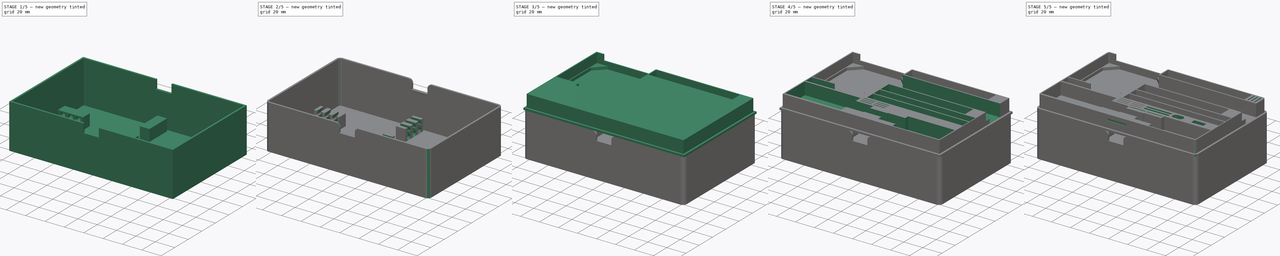
[diagram: build sequence overview — one tinted view per stage of 5, left to right]
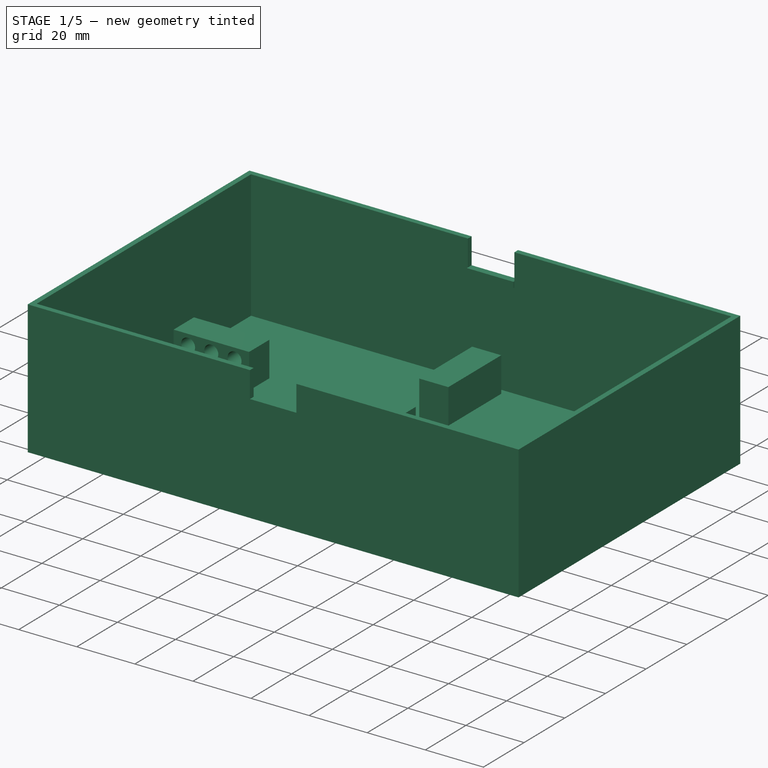
[diagram: stage 1 of 5 — iso view after this stage's code; geometry added in this stage tinted green]
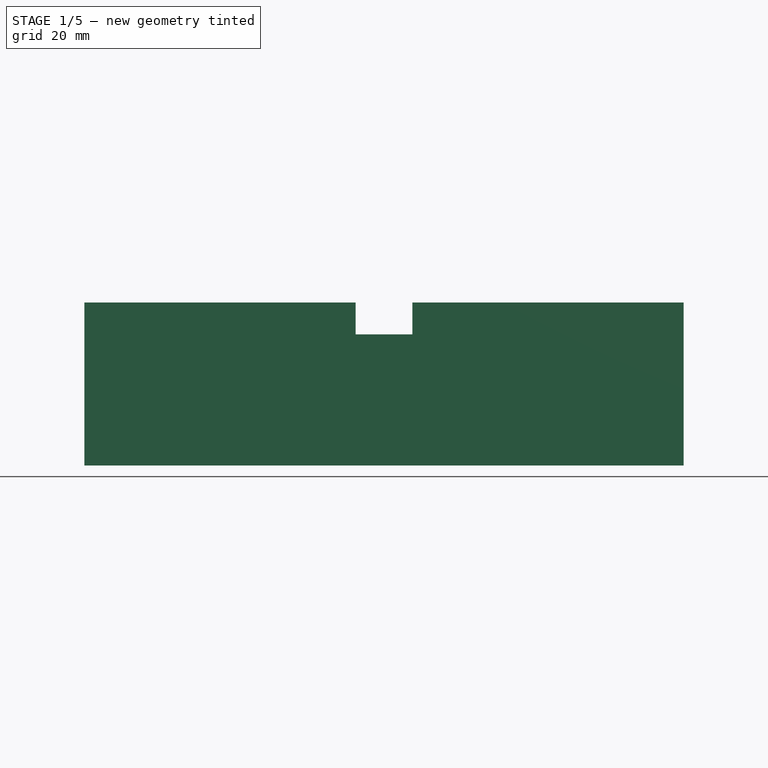
[diagram: stage 1 of 5 — front view after this stage's code; geometry added in this stage tinted green]
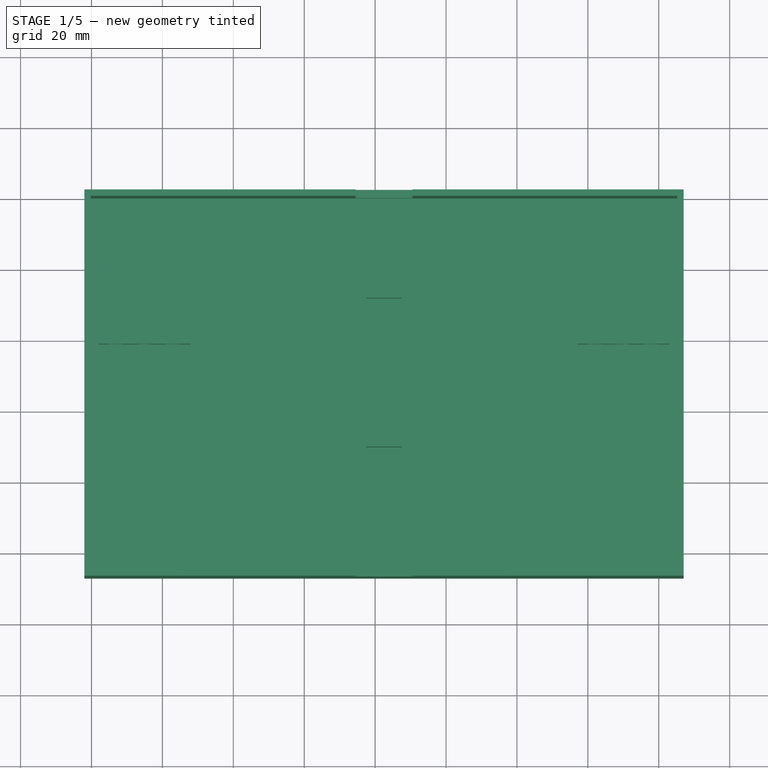
[diagram: stage 1 of 5 — top view after this stage's code; geometry added in this stage tinted green]
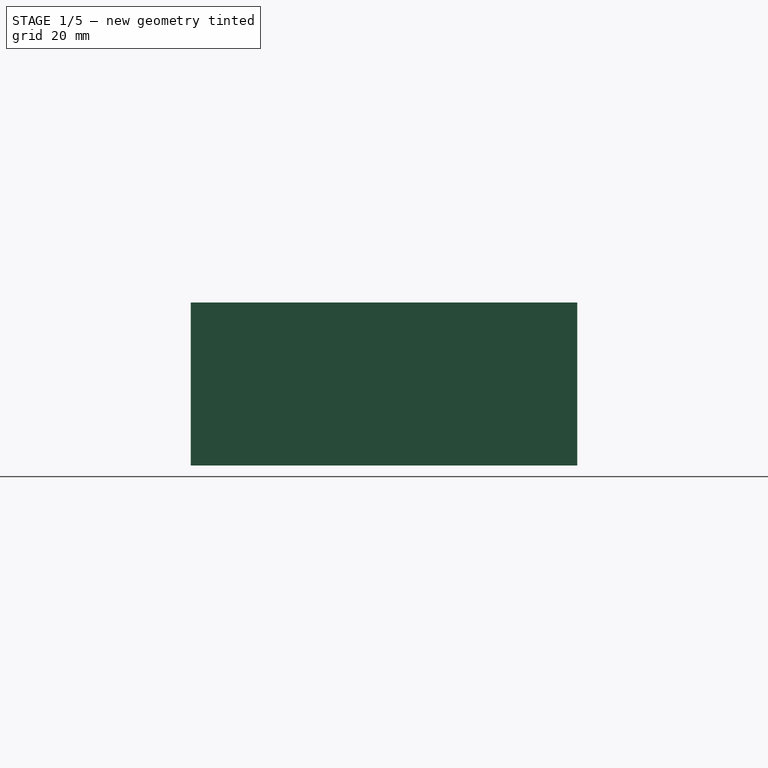
[diagram: stage 1 of 5 — right view after this stage's code; geometry added in this stage tinted green]
FCSTD DOCUMENT  (FreeCAD 0.21R33675 (Git))
Label: StuffOrganizerV1
License: All rights reserved
LicenseURL: http://en.wikipedia.org/wiki/All_rights_reserved
objects: Sketcher::SketchObject×31, PartDesign::Pocket×26, PartDesign::Fillet×11, PartDesign::Pad×7, PartDesign::Plane×5, PartDesign::Body×2
note: 126 computed .brp shape members not serialized (recipe doc carries the construction recipe); baked Part::Feature solids carry a one-line shape summary decoded from their .brp

FEATURE [PartDesign::Body] Body  label="Organizer"
  Group = -> [Sketch007,Sketch,Pad,DatumPlane,Pad001,Pocket016,Pocket006,Sketch001,Pocket,Sketch002,Pocket001,Pocket007,Sketch003,Pocket002,Sketch004,Pocket003,Sketch005,Pocket004,Sketch006,Pocket005,Sketch008,Sketch009,Pocket008,Sketch010,Pocket009,Sketch011,Pocket010,Sketch012,Pocket011,Sketch013,Pocket012,Pocket015,Sketch014,Pocket013,Sketch015,Pocket014,Sketch016,Sketch017,Sketch018,Sketch019,Pocket017,+6 more]
  Origin = -> Origin
  Tip = -> Fillet002
FEATURE [Sketcher::SketchObject] Sketch021  label="CapBaseSketchInt"
  FullyConstrained = true
  MapMode = 5
  Support = -> [XY_Plane001]
  sketch-geometry (4):
    g0: LineSegment StartX=-0.2 StartY=0.2 StartZ=0 EndX=165.2 EndY=0.2 EndZ=0
    g1: LineSegment StartX=165.2 StartY=0.2 StartZ=0 EndX=165.2 EndY=-105.2 EndZ=0
    g2: LineSegment StartX=165.2 StartY=-105.2 StartZ=0 EndX=-0.2 EndY=-105.2 EndZ=0
    g3: LineSegment StartX=-0.2 StartY=-105.2 StartZ=0 EndX=-0.2 EndY=0.2 EndZ=0
  constraints (12):
    c: Coincident(g0,g1)
    c: Coincident(g1,g2)
    c: Coincident(g2,g3)
    c: Coincident(g3,g0)
    c: Horizontal(g0)
    c: Horizontal(g2)
    c: Vertical(g1)
    c: Vertical(g3)
    c: Distance(g1) = 105.4
    c: Distance(g0) = 165.4
    c: DistanceX(g-2,g0) = -0.2
    c: DistanceY(g-1,g0) = 0.2
FEATURE [Sketcher::SketchObject] Sketch022  label="CapBaseSketchExt"
  FullyConstrained = true
  MapMode = 5
  Support = -> [XY_Plane001]
  sketch-geometry (4):
    g0: LineSegment StartX=-2 StartY=2 StartZ=0 EndX=167 EndY=2 EndZ=0
    g1: LineSegment StartX=167 StartY=2 StartZ=0 EndX=167 EndY=-107 EndZ=0
    g2: LineSegment StartX=167 StartY=-107 StartZ=0 EndX=-2 EndY=-107 EndZ=0
    g3: LineSegment StartX=-2 StartY=-107 StartZ=0 EndX=-2 EndY=2 EndZ=0
  constraints (12):
    c: Coincident(g0,g1)
    c: Coincident(g1,g2)
    c: Coincident(g2,g3)
    c: Coincident(g3,g0)
    c: Horizontal(g0)
    c: Horizontal(g2)
    c: Vertical(g1)
    c: Vertical(g3)
    c: DistanceX(g-2,g0) = -2
    c: DistanceY(g-1,g0) = 2
    c: Distance(g0) = 169
    c: Distance(g1) = 109
FEATURE [PartDesign::Pad] Pad002  label="CapPadExt"
  Direction = (0,0,1)
  Length = 46
  Length2 = 10
  Profile = -> Sketch022
  ReferenceAxis = -> Sketch022 [N_Axis]
  Reversed = true
  Type = 0
FEATURE [PartDesign::Pocket] Pocket019  label="CapPocketInt"
  BaseFeature = -> Pad002
  Direction = (0,0,-1)
  Length = 5
  Length2 = 5
  Offset = -2
  Profile = -> Sketch021
  ReferenceAxis = -> Sketch021 [N_Axis]
  Type = 2
FEATURE [Sketcher::SketchObject] Sketch023  label="CapClipSketch"
  FullyConstrained = true
  MapMode = 5
  Placement = pos=(0,0,0) rot=(1,0,0;1.5708rad)
  Support = -> [XZ_Plane001]
  sketch-geometry (5):
    g0: LineSegment StartX=74.5 StartY=9 StartZ=0 EndX=74.5 EndY=-9 EndZ=0
    g1: LineSegment StartX=74.5 StartY=-9 StartZ=0 EndX=90.5 EndY=-9 EndZ=0
    g2: LineSegment StartX=90.5 StartY=-9 StartZ=0 EndX=90.5 EndY=9 EndZ=0
    g3: LineSegment StartX=90.5 StartY=9 StartZ=0 EndX=74.5 EndY=9 EndZ=0
    g4: GeomPoint X=82.5 Y=0 Z=0
  constraints (13):
    c: Coincident(g0,g1)
    c: Coincident(g1,g2)
    c: Coincident(g2,g3)
    c: Coincident(g3,g0)
    c: Horizontal(g1)
    c: Horizontal(g3)
    c: Vertical(g0)
    c: Vertical(g2)
    c: Symmetric(g1,g0,g4)
    c: PointOnObject(g4,g-1)
    c: DistanceX(g-2,g4) = 82.5
    c: Distance(g3) = 16
    c: Distance(g2) = 18
FEATURE [PartDesign::Pocket] Pocket020  label="CapClipPocket"
  BaseFeature = -> Pocket019
  Direction = (0,1,2e-16)
  Length = 5
  Length2 = 5
  Midplane = true
  Profile = -> Sketch023
  ReferenceAxis = -> Sketch023 [N_Axis]
  Type = 1
FEATURE [PartDesign::Plane] DatumPlane002  label="ClipPlaneXZCenter"
  AttachmentOffset = pos=(0,0,52.5) rot=(0,0,1;0rad)
  Length = 215.351
  MapMode = 5
  Placement = pos=(0,-52.5,-1.17e-14) rot=(1,0,0;1.5708rad)
  ResizeMode = 0
  Support = -> [XZ_Plane001]
  Width = 94.3512
FEATURE [Sketcher::SketchObject] Sketch024  label="CapWallClipSketch"
  FullyConstrained = true
  MapMode = 5
  Placement = pos=(0,-52.5,-1.17e-14) rot=(1,0,0;1.5708rad)
  Support = -> [DatumPlane002]
  sketch-geometry (5):
    g0: LineSegment StartX=74.5 StartY=-11 StartZ=0 EndX=74.5 EndY=-9 EndZ=0
    g1: LineSegment StartX=74.5 StartY=-9 StartZ=0 EndX=90.5 EndY=-9 EndZ=0
    g2: LineSegment StartX=90.5 StartY=-9 StartZ=0 EndX=90.5 EndY=-11 EndZ=0
    g3: LineSegment StartX=90.5 StartY=-11 StartZ=0 EndX=74.5 EndY=-11 EndZ=0
    g4: GeomPoint X=82.5 Y=-10 Z=0
  constraints (13):
    c: Coincident(g0,g1)
    c: Coincident(g1,g2)
    c: Coincident(g2,g3)
    c: Coincident(g3,g0)
    c: Horizontal(g1)
    c: Horizontal(g3)
    c: Vertical(g0)
    c: Vertical(g2)
    c: Symmetric(g1,g0,g4)
    c: DistanceX(g-2,g4) = 82.5
    c: Distance(g1) = 16
    c: Distance(g2) = 2
    c: DistanceY(g-1,g4) = -10
FEATURE [PartDesign::Pad] Pad003  label="CapWallClipPad1"
  BaseFeature = -> Pocket020
  Direction = (0,-1,-2e-16)
  Length = 10
  Length2 = 10
  Profile = -> Sketch024
  ReferenceAxis = -> Sketch024 [N_Axis]
  Type = 2
FEATURE [PartDesign::Pad] Pad004  label="CapWallClipPad2"
  BaseFeature = -> Pad003
  Direction = (0,-1,-2e-16)
  Length = 10
  Length2 = 10
  Profile = -> Sketch024
  ReferenceAxis = -> Sketch024 [N_Axis]
  Reversed = true
  Type = 2
FEATURE [PartDesign::Pocket] Pocket021  label="CapWallClipPocket"
  BaseFeature = -> Pad004
  Direction = (0,1,2e-16)
  Length = 52.2
  Length2 = 52.2
  Offset = -2
  Profile = -> Sketch024
  ReferenceAxis = -> Sketch024 [N_Axis]
  Type = 4
FEATURE [PartDesign::Plane] DatumPlane003  label="ClipPlaneYZ"
  AttachmentOffset = pos=(0,0,82.5) rot=(0,0,1;0rad)
  Length = 151.362
  MapMode = 5
  Placement = pos=(82.5,-1.83e-14,1.83e-14) rot=(0.57735,0.57735,0.57735;2.0944rad)
  ResizeMode = 0
  Support = -> [YZ_Plane001]
  Width = 90.3618
FEATURE [PartDesign::Plane] DatumPlane004  label="ClipPlaneXZSide"
  AttachmentOffset = pos=(0,0,36) rot=(0,0,1;0rad)
  Length = 215.351
  MapMode = 5
  Placement = pos=(0,-36,-8e-15) rot=(1,0,0;1.5708rad)
  ResizeMode = 0
  Support = -> [XZ_Plane001]
  Width = 94.3512
FEATURE [Sketcher::SketchObject] Sketch025  label="IntXZClipSketch1"
  FullyConstrained = true
  MapMode = 5
  Placement = pos=(0,-36,-8e-15) rot=(1,0,0;1.5708rad)
  Support = -> [DatumPlane004]
  sketch-geometry (9):
    g0: LineSegment StartX=2 StartY=-32 StartZ=0 EndX=28 EndY=-32 EndZ=0
    g1: LineSegment StartX=28 StartY=-32 StartZ=0 EndX=28 EndY=-44 EndZ=0
    g2: LineSegment StartX=28 StartY=-44 StartZ=0 EndX=2 EndY=-44 EndZ=0
    g3: LineSegment StartX=2 StartY=-44 StartZ=0 EndX=2 EndY=-32 EndZ=0
    g4: LineSegment StartX=82.5 StartY=0 StartZ=0 EndX=82.5 EndY=-100 EndZ=0
    g5: LineSegment StartX=163 StartY=-32 StartZ=0 EndX=137 EndY=-32 EndZ=0
    g6: LineSegment StartX=137 StartY=-32 StartZ=0 EndX=137 EndY=-44 EndZ=0
    g7: LineSegment StartX=137 StartY=-44 StartZ=0 EndX=163 EndY=-44 EndZ=0
    g8: LineSegment StartX=163 StartY=-44 StartZ=0 EndX=163 EndY=-32 EndZ=0
  constraints (27):
    c: Coincident(g0,g1)
    c: Coincident(g1,g2)
    c: Coincident(g2,g3)
    c: Coincident(g3,g0)
    c: Horizontal(g0)
    c: Horizontal(g2)
    c: Vertical(g1)
    c: Vertical(g3)
    c: Vertical(g4)
    c: Coincident(g5,g6)
    c: Coincident(g6,g7)
    c: Coincident(g7,g8)
    c: Coincident(g8,g5)
    c: Horizontal(g5)
    c: Horizontal(g7)
    c: Vertical(g6)
    c: Vertical(g8)
    c: Equal(g0,g5)
    c: Equal(g1,g6)
    c: Symmetric(g5,g0,g4)
    c: Distance(g4) = 100
    c: PointOnObject(g4,g-1)
    c: DistanceX(g-2,g4) = 82.5
    c: DistanceY(g-1,g2) = -44
    c: DistanceX(g-2,g0) = 2
    c: Distance(g0) = 26
    c: Distance(g1) = 12
FEATURE [PartDesign::Pad] Pad005  label="IntXZClipPad"
  BaseFeature = -> Pocket021
  Direction = (0,-1,-2e-16)
  Length = 10
  Length2 = 10
  Midplane = true
  Profile = -> Sketch025
  ReferenceAxis = -> Sketch025 [N_Axis]
  Type = 0
FEATURE [Sketcher::SketchObject] Sketch026  label="IntYZClipSketch1"
  FullyConstrained = true
  MapMode = 5
  Placement = pos=(82.5,-1.83e-14,1.83e-14) rot=(0.57735,0.57735,0.57735;2.0944rad)
  Support = -> [DatumPlane003]
  sketch-geometry (11):
    g0: LineSegment StartX=-28 StartY=-32 StartZ=0 EndX=-28 EndY=-44 EndZ=0
    g1: LineSegment StartX=-28 StartY=-44 StartZ=0 EndX=-2 EndY=-44 EndZ=0
    g2: LineSegment StartX=-2 StartY=-44 StartZ=0 EndX=-2 EndY=-32 EndZ=0
    g3: LineSegment StartX=-2 StartY=-32 StartZ=0 EndX=-28 EndY=-32 EndZ=0
    g4: GeomPoint X=-15 Y=-38 Z=0
    g5: LineSegment StartX=-36 StartY=0 StartZ=0 EndX=-36 EndY=-100 EndZ=0
    g6: LineSegment StartX=-44 StartY=-32 StartZ=0 EndX=-44 EndY=-44 EndZ=0
    g7: LineSegment StartX=-44 StartY=-44 StartZ=0 EndX=-70 EndY=-44 EndZ=0
    g8: LineSegment StartX=-70 StartY=-44 StartZ=0 EndX=-70 EndY=-32 EndZ=0
    g9: LineSegment StartX=-70 StartY=-32 StartZ=0 EndX=-44 EndY=-32 EndZ=0
    g10: GeomPoint X=-57 Y=-38 Z=0
  constraints (29):
    c: Coincident(g0,g1)
    c: Coincident(g1,g2)
    c: Coincident(g2,g3)
    c: Coincident(g3,g0)
    c: Horizontal(g1)
    c: Horizontal(g3)
    c: Vertical(g0)
    c: Vertical(g2)
    c: Symmetric(g1,g0,g4)
    c: PointOnObject(g5,g-1)
    c: Vertical(g5)
    c: Distance(g5) = 100
    c: DistanceX(g-2,g5) = -36
    c: Coincident(g6,g7)
    c: Coincident(g7,g8)
    c: Coincident(g8,g9)
    c: Coincident(g9,g6)
    c: Horizontal(g7)
    c: Horizontal(g9)
    c: Vertical(g6)
    c: Vertical(g8)
    c: Symmetric(g7,g6,g10)
    c: Symmetric(g6,g0,g5)
    c: Equal(g9,g3)
    c: Equal(g8,g2)
    c: Distance(g8,g2) = 68
    c: DistanceY(g-1,g1) = -44
    c: Distance(g0) = 12
    c: Distance(g3) = 26
FEATURE [PartDesign::Pad] Pad006  label="IntYZClipPad"
  BaseFeature = -> Pad005
  Direction = (1,-1e-16,1e-16)
  Length = 10
  Length2 = 10
  Midplane = true
  Profile = -> Sketch026
  ReferenceAxis = -> Sketch026 [N_Axis]
  Type = 0
FEATURE [Sketcher::SketchObject] Sketch027  label="IntXZClipHoles"
  FullyConstrained = true
  MapMode = 5
  Placement = pos=(0,-36,-8e-15) rot=(1,0,0;1.5708rad)
  Support = -> [DatumPlane004]
  sketch-geometry (21):
    g0: Circle CenterX=7 CenterY=-41.6 CenterZ=0 NormalX=0 NormalY=0 NormalZ=1 AngleXU=0 Radius=2.4
    g1: LineSegment StartX=0 StartY=-44 StartZ=0 EndX=100 EndY=-44 EndZ=0
    g2: GeomPoint X=7 Y=-44 Z=0
    g3: LineSegment StartX=7 StartY=-44 StartZ=0 EndX=7 EndY=-41.6 EndZ=0
    g4: Circle CenterX=7 CenterY=-35.6 CenterZ=0 NormalX=0 NormalY=0 NormalZ=1 AngleXU=0 Radius=2.4
    g5: LineSegment StartX=7 StartY=-41.6 StartZ=0 EndX=7 EndY=-35.6 EndZ=0
    g6: Circle CenterX=15 CenterY=-41.6 CenterZ=0 NormalX=0 NormalY=0 NormalZ=1 AngleXU=0 Radius=2.4
    g7: LineSegment StartX=7 StartY=-41.6 StartZ=0 EndX=15 EndY=-41.6 EndZ=0
    g8: Circle CenterX=15 CenterY=-35.6 CenterZ=0 NormalX=0 NormalY=0 NormalZ=1 AngleXU=0 Radius=2.4
    g9: LineSegment StartX=15 StartY=-41.6 StartZ=0 EndX=15 EndY=-35.6 EndZ=0
    g10: LineSegment StartX=82.5 StartY=0 StartZ=0 EndX=82.5 EndY=-100 EndZ=0
    g11: Circle CenterX=158 CenterY=-41.6 CenterZ=0 NormalX=0 NormalY=0 NormalZ=1 AngleXU=0 Radius=2.4
    g12: Circle CenterX=158 CenterY=-35.6 CenterZ=0 NormalX=0 NormalY=0 NormalZ=1 AngleXU=0 Radius=2.4
    g13: Circle CenterX=150 CenterY=-41.6 CenterZ=0 NormalX=0 NormalY=0 NormalZ=1 AngleXU=0 Radius=2.4
    g14: Circle CenterX=150 CenterY=-35.6 CenterZ=0 NormalX=0 NormalY=0 NormalZ=1 AngleXU=0 Radius=2.4
    g15: Circle CenterX=23 CenterY=-35.6 CenterZ=0 NormalX=0 NormalY=0 NormalZ=1 AngleXU=0 Radius=2.4
    g16: Circle CenterX=23 CenterY=-41.6 CenterZ=0 NormalX=0 NormalY=0 NormalZ=1 AngleXU=0 Radius=2.4
    g17: LineSegment StartX=15 StartY=-41.6 StartZ=0 EndX=23 EndY=-41.6 EndZ=0
    g18: LineSegment StartX=23 StartY=-41.6 StartZ=0 EndX=23 EndY=-35.6 EndZ=0
    g19: Circle CenterX=142 CenterY=-35.6 CenterZ=0 NormalX=0 NormalY=0 NormalZ=1 AngleXU=0 Radius=2.4
    g20: Circle CenterX=142 CenterY=-41.6 CenterZ=0 NormalX=0 NormalY=0 NormalZ=1 AngleXU=0 Radius=2.4
  constraints (52):
    c: Diameter(g0) = 4.8
    c: PointOnObject(g1,g-2)
    c: Horizontal(g1)
    c: DistanceY(g-1,g1) = -44
    c: PointOnObject(g2,g0)
    c: Coincident(g3,g2)
    c: Coincident(g3,g0)
    c: Vertical(g3)
    c: PointOnObject(g2,g1)
    c: Equal(g0,g4) = 4.8
    c: Coincident(g0,g5)
    c: Coincident(g4,g5)
    c: Distance(g5) = 6
    c: Angle(g5) = 1.5708
    c: Equal(g0,g6) = 4.8
    c: Coincident(g0,g7)
    c: Coincident(g6,g7)
    c: Distance(g7) = 8
    c: Perpendicular(g7,g5)
    c: Equal(g0,g8) = 4.8
    c: Coincident(g6,g9)
    c: Coincident(g8,g9)
    c: Equal(g5,g9)
    c: Parallel(g9,g5)
    c: PointOnObject(g10,g-1)
    c: Vertical(g10)
    c: Distance(g10) = 100
    c: Distance(g-1,g10) = 82.5
    c: Diameter(g11) = 4.8
    c: Equal(g11,g12) = 4.8
    c: Equal(g11,g13) = 4.8
    c: Equal(g11,g14) = 4.8
    c: Symmetric(g14,g8,g10)
    c: Symmetric(g13,g6,g10)
    c: Symmetric(g11,g0,g10)
    c: Symmetric(g12,g4,g10)
    c: DistanceX(g-2,g4) = 7
    c: Distance(g1) = 100
    c: Equal(g16,g15)
    c: Equal(g15,g8)
    c: Coincident(g17,g6)
    c: Coincident(g17,g16)
    c: Coincident(g18,g16)
    c: Coincident(g18,g15)
    c: Perpendicular(g18,g17)
    c: Parallel(g17,g7)
    c: Equal(g17,g7)
    c: Equal(g18,g9)
    c: Equal(g20,g19)
    c: Equal(g19,g15)
    c: Symmetric(g19,g15,g10)
    c: Symmetric(g20,g16,g10)
FEATURE [PartDesign::Pocket] Pocket022  label="IntXZClipHolesPocket"
  BaseFeature = -> Pad006
  Direction = (0,1,2e-16)
  Length = 10
  Length2 = 5
  Midplane = true
  Profile = -> Sketch027
  ReferenceAxis = -> Sketch027 [N_Axis]
  Type = 0
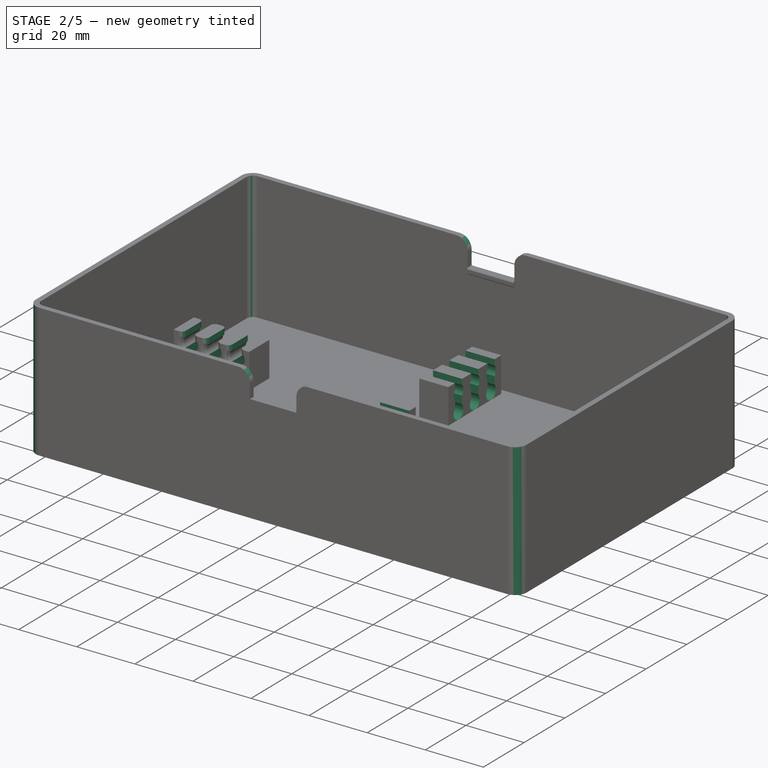
[diagram: stage 2 of 5 — iso view after this stage's code; geometry added in this stage tinted green]
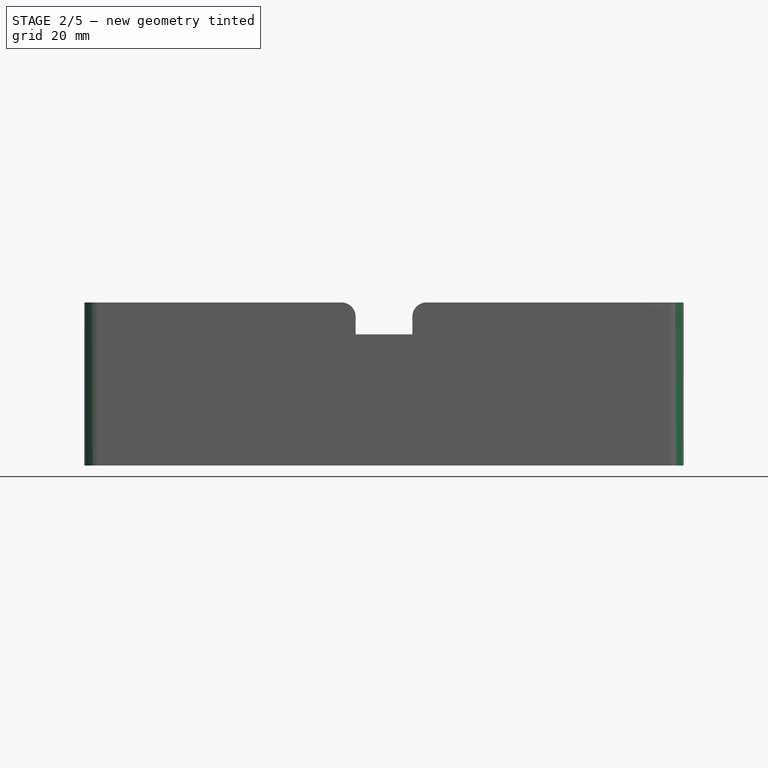
[diagram: stage 2 of 5 — front view after this stage's code; geometry added in this stage tinted green]
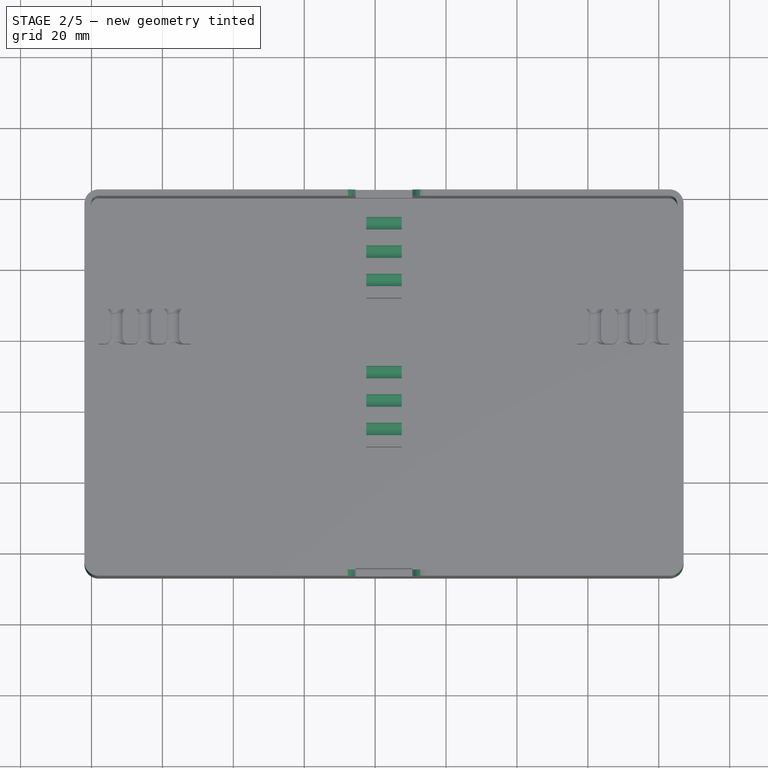
[diagram: stage 2 of 5 — top view after this stage's code; geometry added in this stage tinted green]
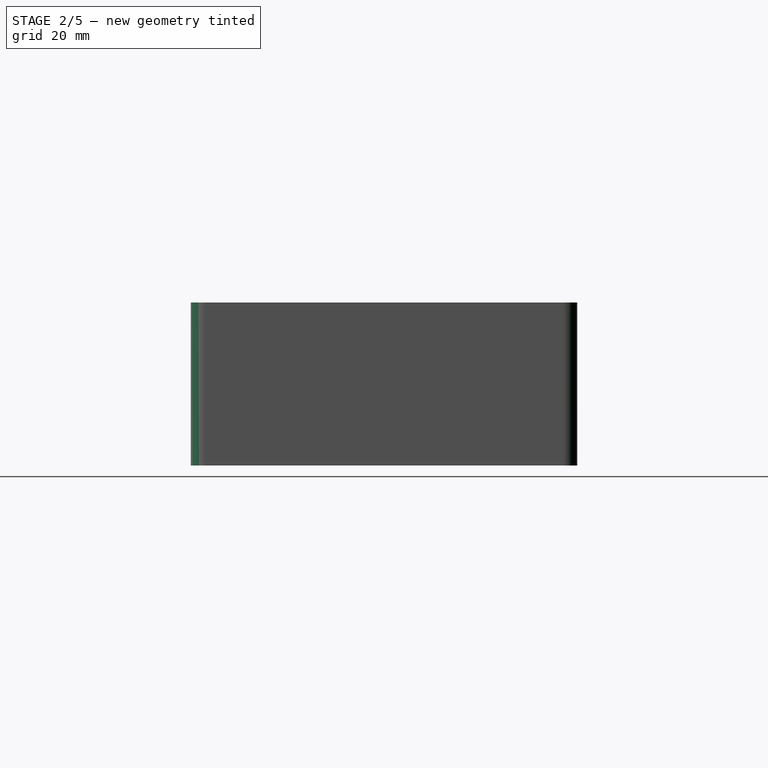
[diagram: stage 2 of 5 — right view after this stage's code; geometry added in this stage tinted green]
FEATURE [Sketcher::SketchObject] Sketch028  label="IntYZClipHoles"
  FullyConstrained = true
  MapMode = 5
  Placement = pos=(82.5,-1.83e-14,1.83e-14) rot=(0.57735,0.57735,0.57735;2.0944rad)
  Support = -> [DatumPlane003]
  sketch-geometry (21):
    g0: Circle CenterX=-15 CenterY=-41.6 CenterZ=0 NormalX=0 NormalY=0 NormalZ=1 AngleXU=0 Radius=2.4
    g1: LineSegment StartX=0 StartY=-44 StartZ=0 EndX=100 EndY=-44 EndZ=0
    g2: GeomPoint X=-15 Y=-44 Z=0
    g3: LineSegment StartX=-15 StartY=-44 StartZ=0 EndX=-15 EndY=-41.6 EndZ=0
    g4: Circle CenterX=-15 CenterY=-35.6 CenterZ=0 NormalX=0 NormalY=0 NormalZ=1 AngleXU=0 Radius=2.4
    g5: LineSegment StartX=-15 StartY=-41.6 StartZ=0 EndX=-15 EndY=-35.6 EndZ=0
    g6: Circle CenterX=-7 CenterY=-41.6 CenterZ=0 NormalX=0 NormalY=0 NormalZ=1 AngleXU=0 Radius=2.4
    g7: LineSegment StartX=-15 StartY=-41.6 StartZ=0 EndX=-7 EndY=-41.6 EndZ=0
    g8: Circle CenterX=-7 CenterY=-35.6 CenterZ=0 NormalX=0 NormalY=0 NormalZ=1 AngleXU=0 Radius=2.4
    g9: LineSegment StartX=-7 StartY=-41.6 StartZ=0 EndX=-7 EndY=-35.6 EndZ=0
    g10: LineSegment StartX=-36 StartY=0 StartZ=0 EndX=-36 EndY=-100 EndZ=0
    g11: Circle CenterX=-57 CenterY=-41.6 CenterZ=0 NormalX=0 NormalY=0 NormalZ=1 AngleXU=0 Radius=2.4
    g12: Circle CenterX=-57 CenterY=-35.6 CenterZ=0 NormalX=0 NormalY=0 NormalZ=1 AngleXU=0 Radius=2.4
    g13: Circle CenterX=-65 CenterY=-41.6 CenterZ=0 NormalX=0 NormalY=0 NormalZ=1 AngleXU=0 Radius=2.4
    g14: Circle CenterX=-65 CenterY=-35.6 CenterZ=0 NormalX=0 NormalY=0 NormalZ=1 AngleXU=0 Radius=2.4
    g15: Circle CenterX=-23 CenterY=-35.6 CenterZ=0 NormalX=0 NormalY=0 NormalZ=1 AngleXU=0 Radius=2.4
    g16: Circle CenterX=-23 CenterY=-41.6 CenterZ=0 NormalX=0 NormalY=0 NormalZ=1 AngleXU=0 Radius=2.4
    g17: Circle CenterX=-49 CenterY=-35.6 CenterZ=0 NormalX=0 NormalY=0 NormalZ=1 AngleXU=0 Radius=2.4
    g18: Circle CenterX=-49 CenterY=-41.6 CenterZ=0 NormalX=0 NormalY=0 NormalZ=1 AngleXU=0 Radius=2.4
    g19: LineSegment StartX=-15 StartY=-41.6 StartZ=0 EndX=-23 EndY=-41.6 EndZ=0
    g20: LineSegment StartX=-23 StartY=-41.6 StartZ=0 EndX=-23 EndY=-35.6 EndZ=0
  constraints (52):
    c: Diameter(g0) = 4.8
    c: PointOnObject(g1,g-2)
    c: Horizontal(g1)
    c: DistanceY(g-1,g1) = -44
    c: PointOnObject(g2,g0)
    c: Coincident(g3,g2)
    c: Coincident(g3,g0)
    c: Vertical(g3)
    c: PointOnObject(g2,g1)
    c: Equal(g0,g4) = 4.8
    c: Coincident(g0,g5)
    c: Coincident(g4,g5)
    c: Distance(g5) = 6
    c: Angle(g5) = 1.5708
    c: Equal(g0,g6) = 4.8
    c: Coincident(g0,g7)
    c: Coincident(g6,g7)
    c: Distance(g7) = 8
    c: Perpendicular(g7,g5)
    c: Equal(g0,g8) = 4.8
    c: Coincident(g6,g9)
    c: Coincident(g8,g9)
    c: Equal(g5,g9)
    c: Parallel(g9,g5)
    c: PointOnObject(g10,g-1)
    c: Vertical(g10)
    c: Distance(g10) = 100
    c: Diameter(g11) = 4.8
    c: Equal(g11,g12) = 4.8
    c: Equal(g11,g13) = 4.8
    c: Equal(g11,g14) = 4.8
    c: Symmetric(g14,g8,g10)
    c: Symmetric(g13,g6,g10)
    c: Symmetric(g11,g0,g10)
    c: Symmetric(g12,g4,g10)
    c: Distance(g1) = 100
    c: DistanceX(g-2,g10) = -36
    c: DistanceX(g-2,g6) = -7
    c: Equal(g15,g16)
    c: Equal(g16,g18)
    c: Equal(g18,g17)
    c: Equal(g17,g4)
    c: Coincident(g19,g0)
    c: Coincident(g20,g19)
    c: Perpendicular(g19,g20)
    c: Coincident(g19,g16)
    c: Coincident(g20,g15)
    c: Equal(g19,g7)
    c: Parallel(g19,g7)
    c: Equal(g20,g5)
    c: Symmetric(g15,g17,g10)
    c: Symmetric(g16,g18,g10)
FEATURE [PartDesign::Pocket] Pocket023  label="IntYZClipPocket"
  BaseFeature = -> Pocket022
  Direction = (-1,1e-16,-1e-16)
  Length = 10
  Length2 = 5
  Midplane = true
  Profile = -> Sketch028
  ReferenceAxis = -> Sketch028 [N_Axis]
  Type = 0
FEATURE [Sketcher::SketchObject] Sketch029  label="IntYZClipVHoles"
  FullyConstrained = true
  MapMode = 5
  Placement = pos=(82.5,-1.83e-14,1.83e-14) rot=(0.57735,0.57735,0.57735;2.0944rad)
  Support = -> [DatumPlane003]
  sketch-geometry (33):
    g0: LineSegment StartX=-8.75 StartY=-42 StartZ=0 EndX=-8.75 EndY=-27 EndZ=0
    g1: LineSegment StartX=-8.75 StartY=-27 StartZ=0 EndX=-5.25 EndY=-27 EndZ=0
    g2: LineSegment StartX=-5.25 StartY=-27 StartZ=0 EndX=-5.25 EndY=-42 EndZ=0
    g3: LineSegment StartX=-5.25 StartY=-42 StartZ=0 EndX=-8.75 EndY=-42 EndZ=0
    g4: GeomPoint X=-7 Y=-34.5 Z=0
    g5: LineSegment StartX=-16.75 StartY=-42 StartZ=0 EndX=-16.75 EndY=-27 EndZ=0
    g6: LineSegment StartX=-16.75 StartY=-27 StartZ=0 EndX=-13.25 EndY=-27 EndZ=0
    g7: LineSegment StartX=-13.25 StartY=-27 StartZ=0 EndX=-13.25 EndY=-42 EndZ=0
    g8: LineSegment StartX=-13.25 StartY=-42 StartZ=0 EndX=-16.75 EndY=-42 EndZ=0
    g9: GeomPoint X=-15 Y=-34.5 Z=0
    g10: LineSegment StartX=-8.75 StartY=-42 StartZ=0 EndX=-16.75 EndY=-42 EndZ=0
    g11: LineSegment StartX=-24.75 StartY=-42 StartZ=0 EndX=-24.75 EndY=-27 EndZ=0
    g12: LineSegment StartX=-24.75 StartY=-27 StartZ=0 EndX=-21.25 EndY=-27 EndZ=0
    g13: LineSegment StartX=-21.25 StartY=-27 StartZ=0 EndX=-21.25 EndY=-42 EndZ=0
    g14: LineSegment StartX=-21.25 StartY=-42 StartZ=0 EndX=-24.75 EndY=-42 EndZ=0
    g15: GeomPoint X=-23 Y=-34.5 Z=0
    g16: LineSegment StartX=-16.75 StartY=-42 StartZ=0 EndX=-24.75 EndY=-42 EndZ=0
    g17: LineSegment StartX=-36 StartY=0 StartZ=0 EndX=-36 EndY=-100 EndZ=0
    g18: LineSegment StartX=-63.25 StartY=-42 StartZ=0 EndX=-63.25 EndY=-27 EndZ=0
    g19: LineSegment StartX=-63.25 StartY=-27 StartZ=0 EndX=-66.75 EndY=-27 EndZ=0
    g20: LineSegment StartX=-66.75 StartY=-27 StartZ=0 EndX=-66.75 EndY=-42 EndZ=0
    g21: LineSegment StartX=-66.75 StartY=-42 StartZ=0 EndX=-63.25 EndY=-42 EndZ=0
    g22: GeomPoint X=-65 Y=-34.5 Z=0
    g23: LineSegment StartX=-55.25 StartY=-42 StartZ=0 EndX=-55.25 EndY=-27 EndZ=0
    g24: LineSegment StartX=-55.25 StartY=-27 StartZ=0 EndX=-58.75 EndY=-27 EndZ=0
    g25: LineSegment StartX=-58.75 StartY=-27 StartZ=0 EndX=-58.75 EndY=-42 EndZ=0
    g26: LineSegment StartX=-58.75 StartY=-42 StartZ=0 EndX=-55.25 EndY=-42 EndZ=0
    g27: GeomPoint X=-57 Y=-34.5 Z=0
    g28: LineSegment StartX=-47.25 StartY=-42 StartZ=0 EndX=-47.25 EndY=-27 EndZ=0
    g29: LineSegment StartX=-47.25 StartY=-27 StartZ=0 EndX=-50.75 EndY=-27 EndZ=0
    g30: LineSegment StartX=-50.75 StartY=-27 StartZ=0 EndX=-50.75 EndY=-42 EndZ=0
    g31: LineSegment StartX=-50.75 StartY=-42 StartZ=0 EndX=-47.25 EndY=-42 EndZ=0
    g32: GeomPoint X=-49 Y=-34.5 Z=0
  constraints (83):
    c: Coincident(g0,g1)
    c: Coincident(g1,g2)
    c: Coincident(g2,g3)
    c: Coincident(g3,g0)
    c: Horizontal(g1)
    c: Horizontal(g3)
    c: Vertical(g0)
    c: Vertical(g2)
    c: Symmetric(g1,g0,g4)
    c: DistanceX(g-2,g4) = -7
    c: Distance(g1) = 3.5
    c: DistanceY(g-1,g2) = -42
    c: Distance(g2) = 15
    c: Coincident(g5,g6)
    c: Coincident(g6,g7)
    c: Coincident(g7,g8)
    c: Coincident(g8,g5)
    c: Horizontal(g6)
    c: Horizontal(g8)
    c: Vertical(g5)
    c: Vertical(g7)
    c: Symmetric(g6,g5,g9)
    c: Equal(g1,g6) = 3.25
    c: Equal(g2,g7) = 15
    c: Coincident(g0,g10)
    c: Coincident(g5,g10)
    c: Distance(g10) = 8
    c: Angle(g10) = 3.14159
    c: Coincident(g11,g12)
    c: Coincident(g12,g13)
    c: Coincident(g13,g14)
    c: Coincident(g14,g11)
    c: Horizontal(g12)
    c: Horizontal(g14)
    c: Vertical(g11)
    c: Vertical(g13)
    c: Symmetric(g12,g11,g15)
    c: Equal(g1,g12) = 3.25
    c: Equal(g2,g13) = 15
    c: Coincident(g5,g16)
    c: Coincident(g11,g16)
    c: Equal(g10,g16)
    c: Parallel(g16,g10)
    c: PointOnObject(g17,g-1)
    c: Vertical(g17)
    c: Distance(g17) = 100
    c: DistanceX(g-2,g17) = -36
    c: Coincident(g18,g19)
    c: Coincident(g19,g20)
    c: Coincident(g20,g21)
    c: Coincident(g21,g18)
    c: Horizontal(g19)
    c: Horizontal(g21)
    c: Vertical(g18)
    c: Vertical(g20)
    c: Symmetric(g19,g18,g22)
    c: Distance(g19) = 3.5
    c: Distance(g20) = 15
    c: Coincident(g23,g24)
    c: Coincident(g24,g25)
    c: Coincident(g25,g26)
    c: Coincident(g26,g23)
    c: Horizontal(g24)
    c: Horizontal(g26)
    c: Vertical(g23)
    c: Vertical(g25)
    c: Symmetric(g24,g23,g27)
    c: Equal(g19,g24) = 3.25
    c: Equal(g20,g25) = 15
    c: Coincident(g28,g29)
    c: Coincident(g29,g30)
    c: Coincident(g30,g31)
    c: Coincident(g31,g28)
    c: Horizontal(g29)
    c: Horizontal(g31)
    c: Vertical(g28)
    c: Vertical(g30)
    c: Symmetric(g29,g28,g32)
    c: Equal(g19,g29) = 3.25
    c: Equal(g20,g30) = 15
    c: Symmetric(g15,g32,g17)
    c: Symmetric(g27,g9,g17)
    c: Symmetric(g4,g22,g17)
FEATURE [PartDesign::Pocket] Pocket024  label="IntYZClipVPocket"
  BaseFeature = -> Pocket023
  Direction = (-1,1e-16,-1e-16)
  Length = 10
  Length2 = 5
  Midplane = true
  Profile = -> Sketch029
  ReferenceAxis = -> Sketch029 [N_Axis]
  Type = 0
FEATURE [Sketcher::SketchObject] Sketch030  label="IntXZClipVHoles"
  FullyConstrained = true
  MapMode = 5
  Placement = pos=(0,-36,-8e-15) rot=(1,0,0;1.5708rad)
  Support = -> [DatumPlane004]
  sketch-geometry (33):
    g0: LineSegment StartX=5.25 StartY=-27 StartZ=0 EndX=5.25 EndY=-42 EndZ=0
    g1: LineSegment StartX=5.25 StartY=-42 StartZ=0 EndX=8.75 EndY=-42 EndZ=0
    g2: LineSegment StartX=8.75 StartY=-42 StartZ=0 EndX=8.75 EndY=-27 EndZ=0
    g3: LineSegment StartX=8.75 StartY=-27 StartZ=0 EndX=5.25 EndY=-27 EndZ=0
    g4: GeomPoint X=7 Y=-34.5 Z=0
    g5: LineSegment StartX=13.25 StartY=-27 StartZ=0 EndX=13.25 EndY=-42 EndZ=0
    g6: LineSegment StartX=13.25 StartY=-42 StartZ=0 EndX=16.75 EndY=-42 EndZ=0
    g7: LineSegment StartX=16.75 StartY=-42 StartZ=0 EndX=16.75 EndY=-27 EndZ=0
    g8: LineSegment StartX=16.75 StartY=-27 StartZ=0 EndX=13.25 EndY=-27 EndZ=0
    g9: GeomPoint X=15 Y=-34.5 Z=0
    g10: LineSegment StartX=5.25 StartY=-27 StartZ=0 EndX=13.25 EndY=-27 EndZ=0
    g11: LineSegment StartX=21.25 StartY=-27 StartZ=0 EndX=21.25 EndY=-42 EndZ=0
    g12: LineSegment StartX=21.25 StartY=-42 StartZ=0 EndX=24.75 EndY=-42 EndZ=0
    g13: LineSegment StartX=24.75 StartY=-42 StartZ=0 EndX=24.75 EndY=-27 EndZ=0
    g14: LineSegment StartX=24.75 StartY=-27 StartZ=0 EndX=21.25 EndY=-27 EndZ=0
    g15: GeomPoint X=23 Y=-34.5 Z=0
    g16: LineSegment StartX=13.25 StartY=-27 StartZ=0 EndX=21.25 EndY=-27 EndZ=0
    g17: LineSegment StartX=82.5 StartY=0 StartZ=0 EndX=82.5 EndY=-100 EndZ=0
    g18: LineSegment StartX=159.75 StartY=-27 StartZ=0 EndX=159.75 EndY=-42 EndZ=0
    g19: LineSegment StartX=159.75 StartY=-42 StartZ=0 EndX=156.25 EndY=-42 EndZ=0
    g20: LineSegment StartX=156.25 StartY=-42 StartZ=0 EndX=156.25 EndY=-27 EndZ=0
    g21: LineSegment StartX=156.25 StartY=-27 StartZ=0 EndX=159.75 EndY=-27 EndZ=0
    g22: GeomPoint X=158 Y=-34.5 Z=0
    g23: LineSegment StartX=151.75 StartY=-27 StartZ=0 EndX=151.75 EndY=-42 EndZ=0
    g24: LineSegment StartX=151.75 StartY=-42 StartZ=0 EndX=148.25 EndY=-42 EndZ=0
    g25: LineSegment StartX=148.25 StartY=-42 StartZ=0 EndX=148.25 EndY=-27 EndZ=0
    g26: LineSegment StartX=148.25 StartY=-27 StartZ=0 EndX=151.75 EndY=-27 EndZ=0
    g27: GeomPoint X=150 Y=-34.5 Z=0
    g28: LineSegment StartX=143.75 StartY=-27 StartZ=0 EndX=143.75 EndY=-42 EndZ=0
    g29: LineSegment StartX=143.75 StartY=-42 StartZ=0 EndX=140.25 EndY=-42 EndZ=0
    g30: LineSegment StartX=140.25 StartY=-42 StartZ=0 EndX=140.25 EndY=-27 EndZ=0
    g31: LineSegment StartX=140.25 StartY=-27 StartZ=0 EndX=143.75 EndY=-27 EndZ=0
    g32: GeomPoint X=142 Y=-34.5 Z=0
  constraints (83):
    c: Coincident(g0,g1)
    c: Coincident(g1,g2)
    c: Coincident(g2,g3)
    c: Coincident(g3,g0)
    c: Horizontal(g1)
    c: Horizontal(g3)
    c: Vertical(g0)
    c: Vertical(g2)
    c: Symmetric(g1,g0,g4)
    c: Distance(g0) = 15
    c: Distance(g3) = 3.5
    c: DistanceY(g-1,g0) = -42
    c: DistanceX(g-2,g4) = 7
    c: Coincident(g5,g6)
    c: Coincident(g6,g7)
    c: Coincident(g7,g8)
    c: Coincident(g8,g5)
    c: Horizontal(g6)
    c: Horizontal(g8)
    c: Vertical(g5)
    c: Vertical(g7)
    c: Symmetric(g6,g5,g9)
    c: Equal(g0,g5) = 15
    c: Equal(g3,g8) = 3.5
    c: Coincident(g0,g10)
    c: Coincident(g5,g10)
    c: Distance(g10) = 8
    c: Angle(g10) = 0
    c: Coincident(g11,g12)
    c: Coincident(g12,g13)
    c: Coincident(g13,g14)
    c: Coincident(g14,g11)
    c: Horizontal(g12)
    c: Horizontal(g14)
    c: Vertical(g11)
    c: Vertical(g13)
    c: Symmetric(g12,g11,g15)
    c: Equal(g0,g11) = 15
    c: Equal(g3,g14) = 3.5
    c: Coincident(g5,g16)
    c: Coincident(g11,g16)
    c: Equal(g10,g16)
    c: Parallel(g16,g10)
    c: PointOnObject(g17,g-1)
    c: Vertical(g17)
    c: Distance(g17) = 100
    c: DistanceX(g-2,g17) = 82.5
    c: Coincident(g18,g19)
    c: Coincident(g19,g20)
    c: Coincident(g20,g21)
    c: Coincident(g21,g18)
    c: Horizontal(g19)
    c: Horizontal(g21)
    c: Vertical(g18)
    c: Vertical(g20)
    c: Symmetric(g19,g18,g22)
    c: Distance(g18) = 15
    c: Distance(g21) = 3.5
    c: Coincident(g23,g24)
    c: Coincident(g24,g25)
    c: Coincident(g25,g26)
    c: Coincident(g26,g23)
    c: Horizontal(g24)
    c: Horizontal(g26)
    c: Vertical(g23)
    c: Vertical(g25)
    c: Symmetric(g24,g23,g27)
    c: Equal(g18,g23) = 15
    c: Equal(g21,g26) = 3.5
    c: Coincident(g28,g29)
    c: Coincident(g29,g30)
    c: Coincident(g30,g31)
    c: Coincident(g31,g28)
    c: Horizontal(g29)
    c: Horizontal(g31)
    c: Vertical(g28)
    c: Vertical(g30)
    c: Symmetric(g29,g28,g32)
    c: Equal(g18,g28) = 15
    c: Equal(g21,g31) = 3.5
    c: Symmetric(g32,g15,g17)
    c: Symmetric(g27,g9,g17)
    c: Symmetric(g22,g4,g17)
FEATURE [PartDesign::Pocket] Pocket025  label="IntXZClipPocket"
  BaseFeature = -> Pocket024
  Direction = (0,1,2e-16)
  Length = 10
  Length2 = 5
  Midplane = true
  Profile = -> Sketch030
  ReferenceAxis = -> Sketch030 [N_Axis]
  Type = 0
FEATURE [PartDesign::Fillet] Fillet003
  Base = -> Pocket025 [Edge38,Edge40,Edge47,Edge36]
  BaseFeature = -> Pocket025
  Radius = 2.2
  SupportTransform = false
  UseAllEdges = false
FEATURE [PartDesign::Fillet] Fillet004
  Base = -> Fillet003 [Edge49,Edge29,Edge34,Edge31]
  BaseFeature = -> Fillet003
  Radius = 4
  SupportTransform = false
  UseAllEdges = false
FEATURE [PartDesign::Fillet] Fillet005
  Base = -> Fillet004 [Edge430,Edge133,Edge129,Edge118]
  BaseFeature = -> Fillet004
  Radius = 0.49
  SupportTransform = false
  UseAllEdges = false
FEATURE [PartDesign::Fillet] Fillet006
  Base = -> Fillet005 [Edge93,Edge37,Edge100,Edge31]
  BaseFeature = -> Fillet005
  Radius = 4
  SupportTransform = false
  UseAllEdges = false
FEATURE [PartDesign::Fillet] Fillet007
  Base = -> Fillet006 [Edge256,Edge257,Edge255,Edge254,Edge267,Edge268,Edge266,Edge265,Edge279,Edge278,Edge277,Edge276,Edge240,Edge239,Edge238,Edge237,Edge229,Edge228,Edge227,Edge226,Edge218,Edge217,Edge216,Edge215,Edge361,Edge360,Edge359,Edge358,Edge366,Edge365,Edge364,Edge363,Edge384,Edge383,Edge382,Edge381,Edge419,Edge418,Edge417,Edge416,+8 more]
  BaseFeature = -> Fillet006
  Radius = 1.58
  SupportTransform = false
  UseAllEdges = false
FEATURE [PartDesign::Fillet] Fillet008
  Base = -> Fillet007 [Edge89,Edge91,Edge93,Edge92,Edge90,Edge115,Edge117,Edge119,Edge121,Edge120,Edge137,Edge139,Edge141,Edge143,Edge142,Edge103,Edge105,Edge107,Edge109,Edge108,Edge79,Edge81,Edge83,Edge85,Edge84,Edge65,Edge67,Edge69,Edge68,Edge66,Edge353,Edge352,Edge350,Edge348,Edge346,Edge375,Edge374,Edge372,Edge370,Edge368,+20 more]
  BaseFeature = -> Fillet007
  Radius = 1.57
  SupportTransform = false
  UseAllEdges = false
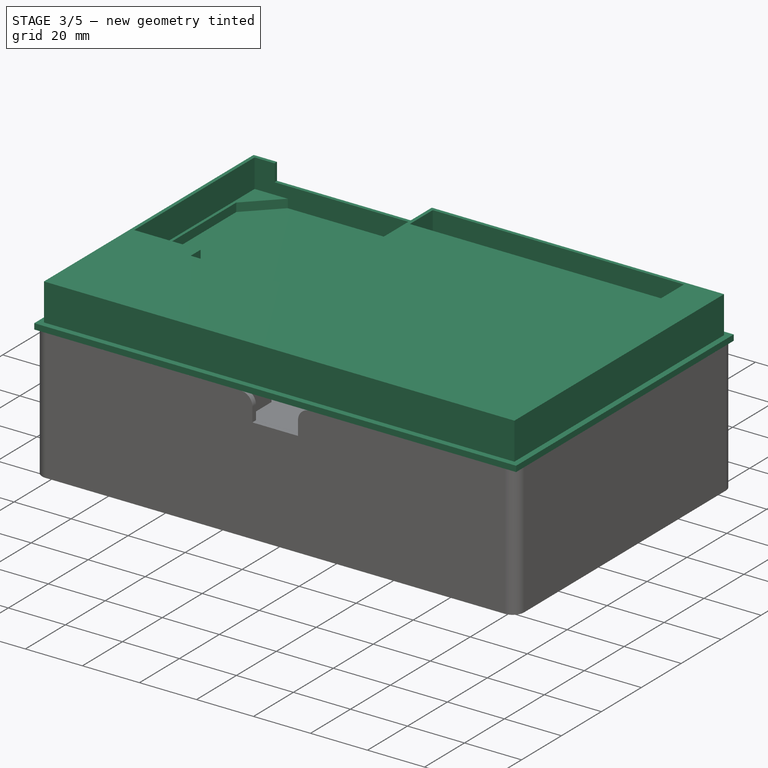
[diagram: stage 3 of 5 — iso view after this stage's code; geometry added in this stage tinted green]
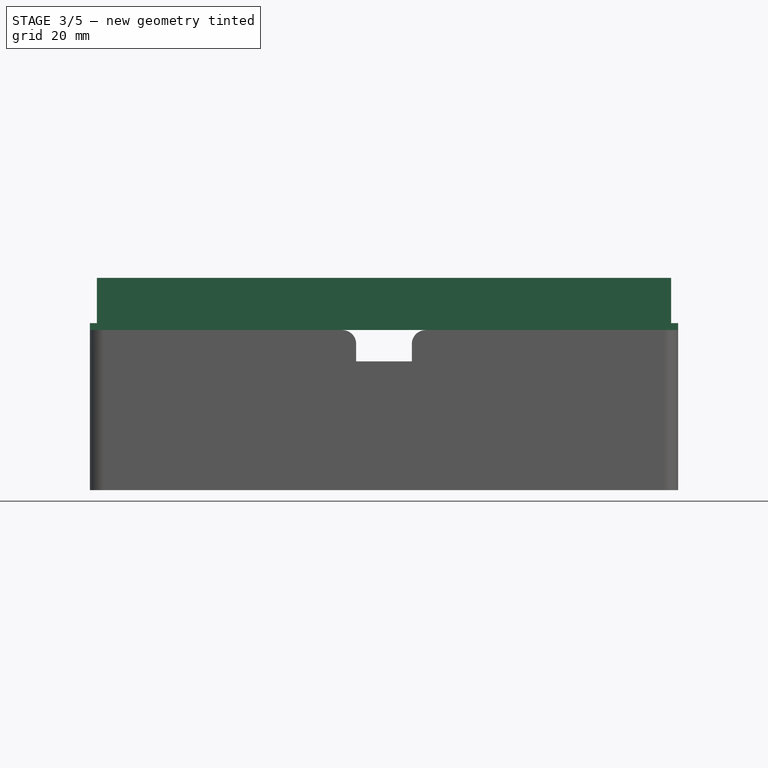
[diagram: stage 3 of 5 — front view after this stage's code; geometry added in this stage tinted green]
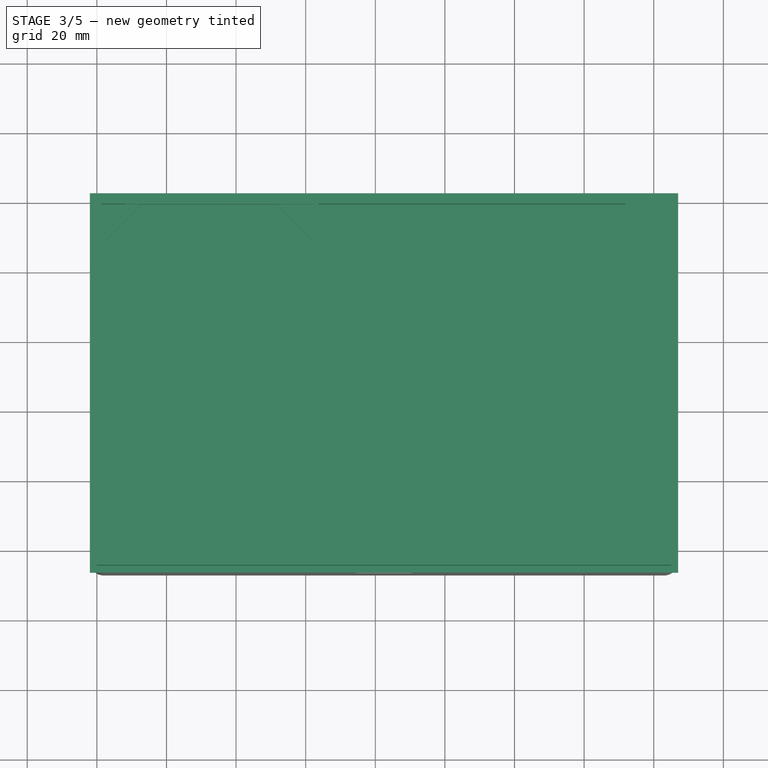
[diagram: stage 3 of 5 — top view after this stage's code; geometry added in this stage tinted green]
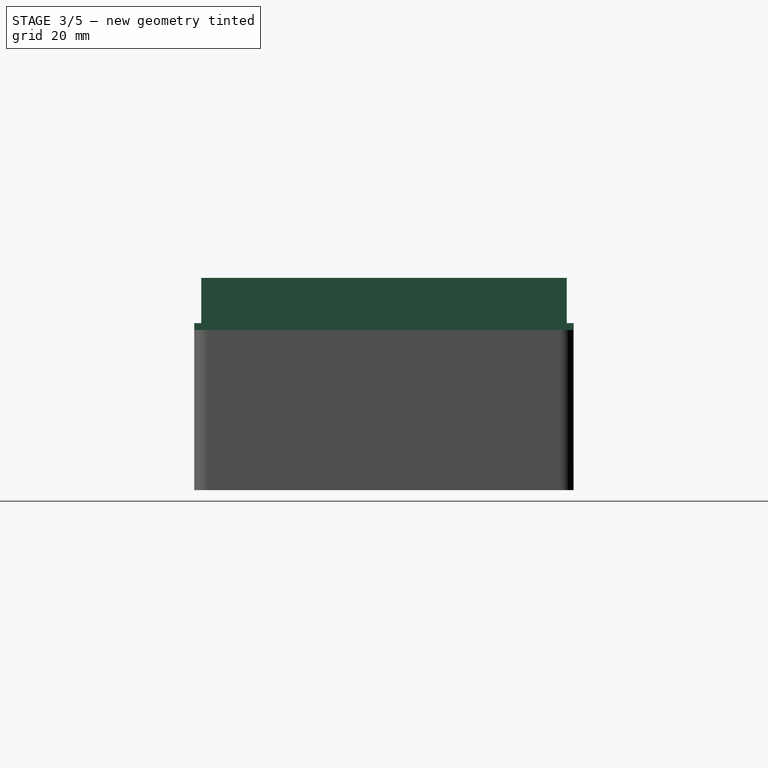
[diagram: stage 3 of 5 — right view after this stage's code; geometry added in this stage tinted green]
FEATURE [Sketcher::SketchObject] Sketch  label="BaseSketch"
  FullyConstrained = true
  MapMode = 5
  Support = -> [XY_Plane]
  sketch-geometry (4):
    g0: LineSegment StartX=0 StartY=0 StartZ=0 EndX=165 EndY=0 EndZ=0
    g1: LineSegment StartX=165 StartY=0 StartZ=0 EndX=165 EndY=-105 EndZ=0
    g2: LineSegment StartX=165 StartY=-105 StartZ=0 EndX=0 EndY=-105 EndZ=0
    g3: LineSegment StartX=0 StartY=-105 StartZ=0 EndX=0 EndY=0 EndZ=0
  constraints (11):
    c: Coincident(g0,g1)
    c: Coincident(g1,g2)
    c: Coincident(g2,g3)
    c: Coincident(g3,g0)
    c: Horizontal(g0)
    c: Horizontal(g2)
    c: Vertical(g1)
    c: Vertical(g3)
    c: Coincident(g0,g-1)
    c: Distance(g0) = 165
    c: Distance(g3) = 105
FEATURE [PartDesign::Pad] Pad  label="BasePad"
  Direction = (0,0,1)
  Length = 15
  Length2 = 10
  Profile = -> Sketch
  ReferenceAxis = -> Sketch [N_Axis]
  Type = 0
FEATURE [PartDesign::Plane] DatumPlane  label="MidDatumPlane"
  Length = 223.84
  MapMode = 5
  Placement = pos=(0,0,15) rot=(0,0,1;0rad)
  ResizeMode = 0
  Support = -> [Pad]
  Width = 163.84
FEATURE [Sketcher::SketchObject] Sketch001  label="RouterSketchExt"
  FullyConstrained = true
  MapMode = 5
  Placement = pos=(0,0,15) rot=(0,0,1;0rad)
  Support = -> [DatumPlane]
  sketch-geometry (10):
    g0: LineSegment StartX=62.5 StartY=18.8 StartZ=0 EndX=62.5 EndY=-61.5 EndZ=0
    g1: LineSegment StartX=1.2 StartY=-61.5 StartZ=0 EndX=1.2 EndY=-1.2 EndZ=0
    g2: LineSegment StartX=1.2 StartY=-1.2 StartZ=0 EndX=8.2 EndY=-1.2 EndZ=0
    g3: LineSegment StartX=8.2 StartY=-1.2 StartZ=0 EndX=8.2 EndY=18.8 EndZ=0
    g4: LineSegment StartX=8.2 StartY=18.8 StartZ=0 EndX=62.5 EndY=18.8 EndZ=0
    g5: LineSegment StartX=1.2 StartY=-61.5 StartZ=0 EndX=24.5 EndY=-61.5 EndZ=0
    g6: LineSegment StartX=24.5 StartY=-61.5 StartZ=0 EndX=24.5 EndY=-66.5 EndZ=0
    g7: LineSegment StartX=24.5 StartY=-66.5 StartZ=0 EndX=56.5 EndY=-66.5 EndZ=0
    g8: LineSegment StartX=56.5 StartY=-66.5 StartZ=0 EndX=56.5 EndY=-61.5 EndZ=0
    g9: LineSegment StartX=56.5 StartY=-61.5 StartZ=0 EndX=62.5 EndY=-61.5 EndZ=0
  constraints (30):
    c: Vertical(g0)
    c: Vertical(g1)
    c: Distance(g1,g-1) = 1.2
    c: Distance(g1,g-2) = 1.2
    c: Distance(g1) = 60.3
    c: Coincident(g2,g1)
    c: Horizontal(g2)
    c: Distance(g2) = 7
    c: Coincident(g3,g2)
    c: Vertical(g3)
    c: Coincident(g4,g3)
    c: Horizontal(g4)
    c: Distance(g3) = 20
    c: Coincident(g0,g4)
    c: DistanceX(g1,g0) = 61.3
    c: Coincident(g5,g1)
    c: Horizontal(g5)
    c: Coincident(g6,g5)
    c: Vertical(g6)
    c: Coincident(g7,g6)
    c: Horizontal(g7)
    c: Coincident(g8,g7)
    c: Vertical(g8)
    c: Coincident(g9,g8)
    c: Coincident(g9,g0)
    c: Horizontal(g9)
    c: Equal(g8,g6)
    c: Distance(g7) = 32
    c: Distance(g9) = 6
    c: Distance(g6) = 5
FEATURE [Sketcher::SketchObject] Sketch002  label="ModemSketch"
  FullyConstrained = true
  MapMode = 5
  Placement = pos=(0,0,15) rot=(0,0,1;0rad)
  Support = -> [DatumPlane]
  sketch-geometry (4):
    g0: LineSegment StartX=63.7 StartY=-1.2 StartZ=0 EndX=151.8 EndY=-1.2 EndZ=0
    g1: LineSegment StartX=151.8 StartY=-1.2 StartZ=0 EndX=151.8 EndY=-12.7 EndZ=0
    g2: LineSegment StartX=151.8 StartY=-12.7 StartZ=0 EndX=63.7 EndY=-12.7 EndZ=0
    g3: LineSegment StartX=63.7 StartY=-12.7 StartZ=0 EndX=63.7 EndY=-1.2 EndZ=0
  constraints (12):
    c: Coincident(g0,g1)
    c: Coincident(g1,g2)
    c: Coincident(g2,g3)
    c: Coincident(g3,g0)
    c: Horizontal(g0)
    c: Horizontal(g2)
    c: Vertical(g1)
    c: Vertical(g3)
    c: Distance(g0) = 88.1
    c: Distance(g3) = 11.5
    c: DistanceY(g0,g-1) = 1.2
    c: DistanceX(g-1,g0) = 63.7
FEATURE [Sketcher::SketchObject] Sketch003  label="HubSketch"
  FullyConstrained = true
  MapMode = 5
  Placement = pos=(0,0,15) rot=(0,0,1;0rad)
  Support = -> [DatumPlane]
  sketch-geometry (4):
    g0: LineSegment StartX=62.5 StartY=-13.9 StartZ=0 EndX=167.5 EndY=-13.9 EndZ=0
    g1: LineSegment StartX=62.5 StartY=-35.2 StartZ=0 EndX=62.5 EndY=-13.9 EndZ=0
    g2: LineSegment StartX=62.5 StartY=-35.2 StartZ=0 EndX=167.5 EndY=-35.2 EndZ=0
    g3: LineSegment StartX=167.5 StartY=-35.2 StartZ=0 EndX=167.5 EndY=-13.9 EndZ=0
  constraints (12):
    c: Coincident(g1,g0)
    c: Horizontal(g0)
    c: Vertical(g1)
    c: Coincident(g2,g1)
    c: Horizontal(g2)
    c: Coincident(g3,g2)
    c: Vertical(g3)
    c: Distance(g1) = 21.3
    c: Distance(g0) = 105
    c: DistanceY(g0,g-1) = 13.9
    c: DistanceX(g-1,g0) = 62.5
    c: Coincident(g3,g0)
FEATURE [Sketcher::SketchObject] Sketch004  label="WLanSketch"
  FullyConstrained = true
  MapMode = 5
  Placement = pos=(0,0,15) rot=(0,0,1;0rad)
  Support = -> [DatumPlane]
  sketch-geometry (4):
    g0: LineSegment StartX=63.7 StartY=-48.7 StartZ=0 EndX=152.5 EndY=-48.7 EndZ=0
    g1: LineSegment StartX=152.5 StartY=-48.7 StartZ=0 EndX=152.5 EndY=-36.4 EndZ=0
    g2: LineSegment StartX=152.5 StartY=-36.4 StartZ=0 EndX=63.7 EndY=-36.4 EndZ=0
    g3: LineSegment StartX=63.7 StartY=-36.4 StartZ=0 EndX=63.7 EndY=-48.7 EndZ=0
  constraints (12):
    c: Coincident(g0,g1)
    c: Coincident(g1,g2)
    c: Coincident(g2,g3)
    c: Coincident(g3,g0)
    c: Horizontal(g0)
    c: Horizontal(g2)
    c: Vertical(g1)
    c: Vertical(g3)
    c: Distance(g0) = 88.8
    c: Distance(g3) = 12.3
    c: DistanceX(g-1,g0) = 63.7
    c: DistanceY(g2,g-1) = 36.4
FEATURE [Sketcher::SketchObject] Sketch005  label="SSDSketch1"
  FullyConstrained = true
  MapMode = 5
  Placement = pos=(0,0,15) rot=(0,0,1;0rad)
  Support = -> [DatumPlane]
  sketch-geometry (4):
    g0: LineSegment StartX=63.7 StartY=-49.9 StartZ=0 EndX=164.2 EndY=-49.9 EndZ=0
    g1: LineSegment StartX=164.2 StartY=-49.9 StartZ=0 EndX=164.2 EndY=-58.9 EndZ=0
    g2: LineSegment StartX=164.2 StartY=-58.9 StartZ=0 EndX=63.7 EndY=-58.9 EndZ=0
    g3: LineSegment StartX=63.7 StartY=-58.9 StartZ=0 EndX=63.7 EndY=-49.9 EndZ=0
  constraints (12):
    c: Coincident(g0,g1)
    c: Coincident(g1,g2)
    c: Coincident(g2,g3)
    c: Coincident(g3,g0)
    c: Horizontal(g0)
    c: Horizontal(g2)
    c: Vertical(g1)
    c: Vertical(g3)
    c: Distance(g0) = 100.5
    c: Distance(g3) = 9
    c: DistanceY(g0,g-1) = 49.9
    c: DistanceX(g-1,g0) = 63.7
FEATURE [Sketcher::SketchObject] Sketch006  label="SSDSketch2"
  FullyConstrained = true
  MapMode = 5
  Placement = pos=(0,0,15) rot=(0,0,1;0rad)
  Support = -> [DatumPlane]
  sketch-geometry (4):
    g0: LineSegment StartX=63.7 StartY=-60.1 StartZ=0 EndX=164.2 EndY=-60.1 EndZ=0
    g1: LineSegment StartX=164.2 StartY=-60.1 StartZ=0 EndX=164.2 EndY=-69.1 EndZ=0
    g2: LineSegment StartX=164.2 StartY=-69.1 StartZ=0 EndX=63.7 EndY=-69.1 EndZ=0
    g3: LineSegment StartX=63.7 StartY=-69.1 StartZ=0 EndX=63.7 EndY=-60.1 EndZ=0
  constraints (12):
    c: Coincident(g0,g1)
    c: Coincident(g1,g2)
    c: Coincident(g2,g3)
    c: Coincident(g3,g0)
    c: Horizontal(g0)
    c: Horizontal(g2)
    c: Vertical(g1)
    c: Vertical(g3)
    c: Distance(g0) = 100.5
    c: Distance(g3) = 9
    c: DistanceX(g-1,g0) = 63.7
    c: DistanceY(g0,g-1) = 60.1
FEATURE [Sketcher::SketchObject] Sketch007  label="RouterSketchInt"
  FullyConstrained = true
  MapMode = 5
  Placement = pos=(0,0,15) rot=(0,0,1;0rad)
  Support = -> [DatumPlane]
  sketch-geometry (4):
    g0: LineSegment StartX=1.2 StartY=-1.2 StartZ=0 EndX=62.5 EndY=-1.2 EndZ=0
    g1: LineSegment StartX=62.5 StartY=-1.2 StartZ=0 EndX=62.5 EndY=-61.5 EndZ=0
    g2: LineSegment StartX=62.5 StartY=-61.5 StartZ=0 EndX=1.2 EndY=-61.5 EndZ=0
    g3: LineSegment StartX=1.2 StartY=-61.5 StartZ=0 EndX=1.2 EndY=-1.2 EndZ=0
  constraints (12):
    c: Coincident(g0,g1)
    c: Coincident(g1,g2)
    c: Coincident(g2,g3)
    c: Coincident(g3,g0)
    c: Horizontal(g0)
    c: Horizontal(g2)
    c: Vertical(g1)
    c: Vertical(g3)
    c: Distance(g0) = 61.3
    c: Distance(g3) = 60.3
    c: DistanceY(g0,g-1) = 1.2
    c: DistanceX(g-1,g0) = 1.2
FEATURE [Sketcher::SketchObject] Sketch008  label="HubSketchBot"
  FullyConstrained = true
  MapMode = 5
  Placement = pos=(0,0,15) rot=(0,0,1;0rad)
  Support = -> [DatumPlane]
  sketch-geometry (6):
    g0: LineSegment StartX=62.5 StartY=-13.9 StartZ=0 EndX=167.5 EndY=-13.9 EndZ=0
    g1: LineSegment StartX=167.5 StartY=-13.9 StartZ=0 EndX=167.5 EndY=-29.5 EndZ=0
    g2: LineSegment StartX=62.5 StartY=-35.2 StartZ=0 EndX=62.5 EndY=-13.9 EndZ=0
    g3: LineSegment StartX=62.5 StartY=-35.2 StartZ=0 EndX=116.5 EndY=-35.2 EndZ=0
    g4: LineSegment StartX=116.5 StartY=-35.2 StartZ=0 EndX=116.5 EndY=-29.5 EndZ=0
    g5: LineSegment StartX=116.5 StartY=-29.5 StartZ=0 EndX=167.5 EndY=-29.5 EndZ=0
  constraints (18):
    c: Coincident(g0,g1)
    c: Coincident(g2,g0)
    c: Horizontal(g0)
    c: Vertical(g1)
    c: Vertical(g2)
    c: Coincident(g3,g2)
    c: Horizontal(g3)
    c: Coincident(g4,g3)
    c: Coincident(g5,g4)
    c: Horizontal(g5)
    c: Coincident(g5,g1)
    c: Vertical(g4)
    c: Distance(g2) = 21.3
    c: Distance(g1) = 15.6
    c: Distance(g0) = 105
    c: Distance(g3) = 54
    c: DistanceY(g0,g-1) = 13.9
    c: DistanceX(g-1,g0) = 62.5
FEATURE [Sketcher::SketchObject] Sketch009  label="50WPSUSketch"
  FullyConstrained = true
  MapMode = 5
  Placement = pos=(0,0,15) rot=(0,0,1;0rad)
  Support = -> [DatumPlane]
  sketch-geometry (12):
    g0: LineSegment StartX=1.2 StartY=-73.5 StartZ=0 EndX=59.9 EndY=-73.5 EndZ=0
    g1: LineSegment StartX=59.9 StartY=-102.8 StartZ=0 EndX=1.2 EndY=-102.8 EndZ=0
    g2: LineSegment StartX=1.2 StartY=-102.8 StartZ=0 EndX=1.2 EndY=-73.5 EndZ=0
    g3: LineSegment StartX=59.9 StartY=-73.5 StartZ=0 EndX=59.9 EndY=-80.8 EndZ=0
    g4: LineSegment StartX=59.9 StartY=-102.8 StartZ=0 EndX=59.9 EndY=-95.5 EndZ=0
    g5: LineSegment StartX=59.9 StartY=-80.8 StartZ=0 EndX=78.4 EndY=-80.8 EndZ=0
    g6: LineSegment StartX=59.9 StartY=-95.5 StartZ=0 EndX=78.4 EndY=-95.5 EndZ=0
    g7: LineSegment StartX=78.4 StartY=-95.5 StartZ=0 EndX=78.4 EndY=-90.65 EndZ=0
    g8: LineSegment StartX=78.4 StartY=-80.8 StartZ=0 EndX=78.4 EndY=-85.65 EndZ=0
    g9: LineSegment StartX=78.4 StartY=-85.65 StartZ=0 EndX=97.9 EndY=-85.65 EndZ=0
    g10: LineSegment StartX=78.4 StartY=-90.65 StartZ=0 EndX=97.9 EndY=-90.65 EndZ=0
    g11: LineSegment StartX=97.9 StartY=-85.65 StartZ=0 EndX=97.9 EndY=-90.65 EndZ=0
  constraints (36):
    c: Coincident(g1,g2)
    c: Coincident(g2,g0)
    c: Horizontal(g0)
    c: Horizontal(g1)
    c: Vertical(g2)
    c: Distance(g2) = 29.3
    c: Distance(g1) = 58.7
    c: DistanceX(g-1,g0) = 1.2
    c: DistanceY(g0,g-1) = 73.5
    c: Coincident(g3,g0)
    c: Coincident(g4,g1)
    c: Vertical(g3)
    c: Vertical(g4)
    c: Equal(g3,g4)
    c: Coincident(g5,g3)
    c: Coincident(g6,g4)
    c: Horizontal(g6)
    c: Horizontal(g5)
    c: Equal(g1,g0)
    c: Distance(g6) = 18.5
    c: Coincident(g7,g6)
    c: Vertical(g7)
    c: Coincident(g8,g5)
    c: Vertical(g8)
    c: Coincident(g9,g8)
    c: Horizontal(g9)
    c: Coincident(g10,g7)
    c: Horizontal(g10)
    c: Coincident(g11,g9)
    c: Coincident(g11,g10)
    c: Vertical(g11)
    c: Equal(g7,g8)
    c: Distance(g10) = 19.5
    c: Distance(g11) = 5
    c: Equal(g5,g6)
    c: Distance(g4,g3) = 14.7
FEATURE [Sketcher::SketchObject] Sketch010  label="30WPSUSketch"
  FullyConstrained = true
  MapMode = 5
  Placement = pos=(0,0,15) rot=(0,0,1;0rad)
  Support = -> [DatumPlane]
  sketch-geometry (12):
    g0: LineSegment StartX=115 StartY=-80.5 StartZ=0 EndX=163.8 EndY=-80.5 EndZ=0
    g1: LineSegment StartX=163.8 StartY=-80.5 StartZ=0 EndX=163.8 EndY=-103.8 EndZ=0
    g2: LineSegment StartX=163.8 StartY=-103.8 StartZ=0 EndX=115 EndY=-103.8 EndZ=0
    g3: LineSegment StartX=115 StartY=-80.5 StartZ=0 EndX=115 EndY=-84.9 EndZ=0
    g4: LineSegment StartX=115 StartY=-103.8 StartZ=0 EndX=115 EndY=-99.4 EndZ=0
    g5: LineSegment StartX=115 StartY=-99.4 StartZ=0 EndX=96.7 EndY=-99.4 EndZ=0
    g6: LineSegment StartX=115 StartY=-84.9 StartZ=0 EndX=96.7 EndY=-84.9 EndZ=0
    g7: LineSegment StartX=96.7 StartY=-84.9 StartZ=0 EndX=96.7 EndY=-89.65 EndZ=0
    g8: LineSegment StartX=96.7 StartY=-99.4 StartZ=0 EndX=96.7 EndY=-94.65 EndZ=0
    g9: LineSegment StartX=96.7 StartY=-89.65 StartZ=0 EndX=77.2 EndY=-89.65 EndZ=0
    g10: LineSegment StartX=96.7 StartY=-94.65 StartZ=0 EndX=77.2 EndY=-94.65 EndZ=0
    g11: LineSegment StartX=77.2 StartY=-94.65 StartZ=0 EndX=77.2 EndY=-89.65 EndZ=0
  constraints (36):
    c: Coincident(g0,g1)
    c: Coincident(g1,g2)
    c: Horizontal(g0)
    c: Horizontal(g2)
    c: Vertical(g1)
    c: Coincident(g3,g0)
    c: Coincident(g4,g2)
    c: Coincident(g5,g4)
    c: Horizontal(g5)
    c: Coincident(g6,g3)
    c: Horizontal(g6)
    c: Coincident(g7,g6)
    c: Coincident(g8,g5)
    c: Coincident(g9,g7)
    c: Coincident(g10,g8)
    c: Coincident(g11,g10)
    c: Coincident(g11,g9)
    c: Distance(g1) = 23.3
    c: Distance(g2) = 48.8
    c: Vertical(g3)
    c: Vertical(g4)
    c: Equal(g0,g2)
    c: Equal(g4,g3)
    c: Distance(g3,g4) = 14.5
    c: Equal(g5,g6)
    c: Distance(g6) = 18.3
    c: Vertical(g7)
    c: Vertical(g8)
    c: Equal(g8,g7)
    c: Horizontal(g9)
    c: Horizontal(g10)
    c: Equal(g9,g10)
    c: Distance(g7,g8) = 5
    c: Distance(g10) = 19.5
    c: DistanceX(g-1,g0) = 115
    c: DistanceY(g0,g-1) = 80.5
FEATURE [Sketcher::SketchObject] Sketch011  label="CRSketch"
  FullyConstrained = true
  MapMode = 5
  Placement = pos=(0,0,15) rot=(0,0,1;0rad)
  Support = -> [DatumPlane]
  sketch-geometry (4):
    g0: LineSegment StartX=1.2 StartY=-62.7 StartZ=0 EndX=57.7 EndY=-62.7 EndZ=0
    g1: LineSegment StartX=57.7 StartY=-62.7 StartZ=0 EndX=57.7 EndY=-71.7 EndZ=0
    g2: LineSegment StartX=57.7 StartY=-71.7 StartZ=0 EndX=1.2 EndY=-71.7 EndZ=0
    g3: LineSegment StartX=1.2 StartY=-71.7 StartZ=0 EndX=1.2 EndY=-62.7 EndZ=0
  constraints (12):
    c: Coincident(g0,g1)
    c: Coincident(g1,g2)
    c: Coincident(g2,g3)
    c: Coincident(g3,g0)
    c: Horizontal(g0)
    c: Horizontal(g2)
    c: Vertical(g1)
    c: Vertical(g3)
    c: DistanceX(g-1,g0) = 1.2
    c: Distance(g3) = 9
    c: Distance(g0) = 56.5
    c: DistanceY(g0,g-1) = 62.7
FEATURE [Sketcher::SketchObject] Sketch012  label="uSDSketch"
  FullyConstrained = true
  MapMode = 5
  Placement = pos=(0,0,15) rot=(0,0,1;0rad)
  Support = -> [DatumPlane]
  sketch-geometry (29):
    g0: ArcOfCircle CenterX=63 CenterY=-72 CenterZ=0 NormalX=0 NormalY=0 NormalZ=1 AngleXU=0 Radius=0.45 StartAngle=1.5708 EndAngle=4.71239
    g1: ArcOfCircle CenterX=74.5 CenterY=-72 CenterZ=0 NormalX=0 NormalY=0 NormalZ=1 AngleXU=0 Radius=0.45 StartAngle=4.71239 EndAngle=7.85398
    g2: LineSegment StartX=63 StartY=-72.45 StartZ=0 EndX=74.5 EndY=-72.45 EndZ=0
    g3: LineSegment StartX=74.5 StartY=-71.55 StartZ=0 EndX=63 EndY=-71.55 EndZ=0
    g4: ArcOfCircle CenterX=77 CenterY=-72 CenterZ=0 NormalX=0 NormalY=0 NormalZ=1 AngleXU=0 Radius=0.45 StartAngle=1.5708 EndAngle=4.71239
    g5: ArcOfCircle CenterX=88.5 CenterY=-72 CenterZ=0 NormalX=0 NormalY=0 NormalZ=1 AngleXU=0 Radius=0.45 StartAngle=4.71239 EndAngle=7.85398
    g6: LineSegment StartX=77 StartY=-72.45 StartZ=0 EndX=88.5 EndY=-72.45 EndZ=0
    g7: LineSegment StartX=88.5 StartY=-71.55 StartZ=0 EndX=77 EndY=-71.55 EndZ=0
    g8: LineSegment StartX=63 StartY=-71.55 StartZ=0 EndX=77 EndY=-71.55 EndZ=0
    g9: ArcOfCircle CenterX=63 CenterY=-75 CenterZ=0 NormalX=0 NormalY=0 NormalZ=1 AngleXU=0 Radius=0.45 StartAngle=1.5708 EndAngle=4.71239
    g10: ArcOfCircle CenterX=74.5 CenterY=-75 CenterZ=0 NormalX=0 NormalY=0 NormalZ=1 AngleXU=0 Radius=0.45 StartAngle=4.71239 EndAngle=7.85398
    g11: LineSegment StartX=63 StartY=-75.45 StartZ=0 EndX=74.5 EndY=-75.45 EndZ=0
    g12: LineSegment StartX=74.5 StartY=-74.55 StartZ=0 EndX=63 EndY=-74.55 EndZ=0
    g13: LineSegment StartX=63 StartY=-71.55 StartZ=0 EndX=63 EndY=-74.55 EndZ=0
    g14: ArcOfCircle CenterX=77 CenterY=-75 CenterZ=0 NormalX=0 NormalY=0 NormalZ=1 AngleXU=0 Radius=0.45 StartAngle=1.5708 EndAngle=4.71239
    g15: ArcOfCircle CenterX=88.5 CenterY=-75 CenterZ=0 NormalX=0 NormalY=0 NormalZ=1 AngleXU=0 Radius=0.45 StartAngle=4.71239 EndAngle=7.85398
    g16: LineSegment StartX=77 StartY=-75.45 StartZ=0 EndX=88.5 EndY=-75.45 EndZ=0
    g17: LineSegment StartX=88.5 StartY=-74.55 StartZ=0 EndX=77 EndY=-74.55 EndZ=0
    g18: LineSegment StartX=63 StartY=-74.55 StartZ=0 EndX=77 EndY=-74.55 EndZ=0
    g19: ArcOfCircle CenterX=63 CenterY=-78 CenterZ=0 NormalX=0 NormalY=0 NormalZ=1 AngleXU=0 Radius=0.45 StartAngle=1.5708 EndAngle=4.71239
    g20: ArcOfCircle CenterX=74.5 CenterY=-78 CenterZ=0 NormalX=0 NormalY=0 NormalZ=1 AngleXU=0 Radius=0.45 StartAngle=4.71239 EndAngle=7.85398
    g21: LineSegment StartX=63 StartY=-78.45 StartZ=0 EndX=74.5 EndY=-78.45 EndZ=0
    g22: LineSegment StartX=74.5 StartY=-77.55 StartZ=0 EndX=63 EndY=-77.55 EndZ=0
    g23: LineSegment StartX=63 StartY=-74.55 StartZ=0 EndX=63 EndY=-77.55 EndZ=0
    g24: ArcOfCircle CenterX=77 CenterY=-78 CenterZ=0 NormalX=0 NormalY=0 NormalZ=1 AngleXU=0 Radius=0.45 StartAngle=1.5708 EndAngle=4.71239
    g25: ArcOfCircle CenterX=88.5 CenterY=-78 CenterZ=0 NormalX=0 NormalY=0 NormalZ=1 AngleXU=0 Radius=0.45 StartAngle=4.71239 EndAngle=7.85398
    g26: LineSegment StartX=77 StartY=-78.45 StartZ=0 EndX=88.5 EndY=-78.45 EndZ=0
    g27: LineSegment StartX=88.5 StartY=-77.55 StartZ=0 EndX=77 EndY=-77.55 EndZ=0
    g28: LineSegment StartX=63 StartY=-77.55 StartZ=0 EndX=77 EndY=-77.55 EndZ=0
  constraints (70):
    c: Tangent(g0,g2) = -1.5708
    c: Tangent(g2,g1) = -1.5708
    c: Tangent(g1,g3) = -1.5708
    c: Tangent(g3,g0) = -1.5708
    c: Equal(g0,g1)
    c: Horizontal(g2)
    c: DistanceX(g-2,g0) = 63
    c: DistanceY(g-1,g0) = -72
    c: Distance(g3) = 11.5
    c: Diameter(g0) = 0.9
    c: Tangent(g4,g6) = -1.5708
    c: Tangent(g6,g5) = -1.5708
    c: Tangent(g5,g7) = -1.5708
    c: Tangent(g7,g4) = -1.5708
    c: Equal(g4,g5)
    c: Horizontal(g6)
    c: Equal(g3,g7) = 11.5
    c: Equal(g0,g4) = 0.9
    c: Coincident(g0,g8)
    c: Coincident(g4,g8)
    c: Distance(g8) = 14
    c: Angle(g8) = 0
    c: Tangent(g9,g11) = -1.5708
    c: Tangent(g11,g10) = -1.5708
    c: Tangent(g10,g12) = -1.5708
    c: Tangent(g12,g9) = -1.5708
    c: Equal(g9,g10)
    c: Horizontal(g11)
    c: Equal(g3,g12) = 11.5
    c: Equal(g0,g9) = 0.9
    c: Coincident(g0,g13)
    c: Coincident(g9,g13)
    c: Distance(g13) = 3
    c: Perpendicular(g13,g8)
    c: Tangent(g14,g16) = -1.5708
    c: Tangent(g16,g15) = -1.5708
    c: Tangent(g15,g17) = -1.5708
    c: Tangent(g17,g14) = -1.5708
    c: Equal(g14,g15)
    c: Horizontal(g16)
    c: Equal(g3,g17) = 11.5
    c: Equal(g0,g14) = 0.9
    c: Coincident(g9,g18)
    c: Coincident(g14,g18)
    c: Equal(g8,g18)
    c: Parallel(g18,g8)
    c: Tangent(g19,g21) = -1.5708
    c: Tangent(g21,g20) = -1.5708
    c: Tangent(g20,g22) = -1.5708
    c: Tangent(g22,g19) = -1.5708
    c: Equal(g19,g20)
    c: Horizontal(g21)
    c: Equal(g3,g22) = 11.5
    c: Equal(g0,g19) = 0.9
    c: Coincident(g9,g23)
    c: Coincident(g19,g23)
    c: Equal(g13,g23)
    c: Perpendicular(g23,g8)
    c: Tangent(g24,g26) = -1.5708
    c: Tangent(g26,g25) = -1.5708
    c: Tangent(g25,g27) = -1.5708
    c: Tangent(g27,g24) = -1.5708
    c: Equal(g24,g25)
    c: Horizontal(g26)
    c: Equal(g3,g27) = 11.5
    c: Equal(g0,g24) = 0.9
    c: Coincident(g19,g28)
    c: Coincident(g24,g28)
    c: Equal(g8,g28)
    c: Parallel(g28,g8)
FEATURE [Sketcher::SketchObject] Sketch013  label="SDSketch"
  FullyConstrained = true
  MapMode = 5
  Placement = pos=(0,0,15) rot=(0,0,1;0rad)
  Support = -> [DatumPlane]
  sketch-geometry (9):
    g0: ArcOfCircle CenterX=92 CenterY=-73 CenterZ=0 NormalX=0 NormalY=0 NormalZ=1 AngleXU=0 Radius=1.05 StartAngle=1.5708 EndAngle=4.71239
    g1: ArcOfCircle CenterX=116.5 CenterY=-73 CenterZ=0 NormalX=0 NormalY=0 NormalZ=1 AngleXU=0 Radius=1.05 StartAngle=4.71239 EndAngle=7.85398
    g2: LineSegment StartX=92 StartY=-74.05 StartZ=0 EndX=116.5 EndY=-74.05 EndZ=0
    g3: LineSegment StartX=116.5 StartY=-71.95 StartZ=0 EndX=92 EndY=-71.95 EndZ=0
    g4: ArcOfCircle CenterX=92 CenterY=-76.75 CenterZ=0 NormalX=0 NormalY=0 NormalZ=1 AngleXU=0 Radius=1.05 StartAngle=1.5708 EndAngle=4.71239
    g5: ArcOfCircle CenterX=116.5 CenterY=-76.75 CenterZ=0 NormalX=0 NormalY=0 NormalZ=1 AngleXU=0 Radius=1.05 StartAngle=4.71239 EndAngle=7.85398
    g6: LineSegment StartX=92 StartY=-77.8 StartZ=0 EndX=116.5 EndY=-77.8 EndZ=0
    g7: LineSegment StartX=116.5 StartY=-75.7 StartZ=0 EndX=92 EndY=-75.7 EndZ=0
    g8: LineSegment StartX=92 StartY=-71.95 StartZ=0 EndX=92 EndY=-75.7 EndZ=0
  constraints (22):
    c: Tangent(g0,g2) = -1.5708
    c: Tangent(g2,g1) = -1.5708
    c: Tangent(g1,g3) = -1.5708
    c: Tangent(g3,g0) = -1.5708
    c: Equal(g0,g1)
    c: Horizontal(g2)
    c: Distance(g3) = 24.5
    c: Diameter(g0) = 2.1
    c: DistanceX(g-2,g0) = 92
    c: DistanceY(g-1,g0) = -73
    c: Tangent(g4,g6) = -1.5708
    c: Tangent(g6,g5) = -1.5708
    c: Tangent(g5,g7) = -1.5708
    c: Tangent(g7,g4) = -1.5708
    c: Equal(g4,g5)
    c: Horizontal(g6)
    c: Equal(g3,g7) = 24.5
    c: Equal(g0,g4) = 2.1
    c: Coincident(g0,g8)
    c: Coincident(g4,g8)
    c: Distance(g8) = 3.75
    c: Angle(g8) = -1.5708
FEATURE [Sketcher::SketchObject] Sketch014  label="SIMSketch"
  FullyConstrained = true
  MapMode = 5
  Placement = pos=(0,0,15) rot=(0,0,1;0rad)
  Support = -> [DatumPlane]
  sketch-geometry (9):
    g0: ArcOfCircle CenterX=80 CenterY=-81.5 CenterZ=0 NormalX=0 NormalY=0 NormalZ=1 AngleXU=0 Radius=0.5 StartAngle=1.5708 EndAngle=4.71239
    g1: ArcOfCircle CenterX=95.5 CenterY=-81.5 CenterZ=0 NormalX=0 NormalY=0 NormalZ=1 AngleXU=0 Radius=0.5 StartAngle=4.71239 EndAngle=7.85398
    g2: LineSegment StartX=80 StartY=-82 StartZ=0 EndX=95.5 EndY=-82 EndZ=0
    g3: LineSegment StartX=95.5 StartY=-81 StartZ=0 EndX=80 EndY=-81 EndZ=0
    g4: ArcOfCircle CenterX=97.5 CenterY=-81.5 CenterZ=0 NormalX=0 NormalY=0 NormalZ=1 AngleXU=0 Radius=0.5 StartAngle=1.5708 EndAngle=4.71239
    g5: ArcOfCircle CenterX=113 CenterY=-81.5 CenterZ=0 NormalX=0 NormalY=0 NormalZ=1 AngleXU=0 Radius=0.5 StartAngle=4.71239 EndAngle=7.85398
    g6: LineSegment StartX=97.5 StartY=-82 StartZ=0 EndX=113 EndY=-82 EndZ=0
    g7: LineSegment StartX=113 StartY=-81 StartZ=0 EndX=97.5 EndY=-81 EndZ=0
    g8: LineSegment StartX=80 StartY=-81.5 StartZ=0 EndX=97.5 EndY=-81.5 EndZ=0
  constraints (22):
    c: Tangent(g0,g2) = -1.5708
    c: Tangent(g2,g1) = -1.5708
    c: Tangent(g1,g3) = -1.5708
    c: Tangent(g3,g0) = -1.5708
    c: Equal(g0,g1)
    c: Horizontal(g2)
    c: Diameter(g0) = 1
    c: Distance(g3) = 15.5
    c: DistanceX(g-2,g0) = 80
    c: DistanceY(g-1,g0) = -81.5
    c: Tangent(g4,g6) = -1.5708
    c: Tangent(g6,g5) = -1.5708
    c: Tangent(g5,g7) = -1.5708
    c: Tangent(g7,g4) = -1.5708
    c: Equal(g4,g5)
    c: Horizontal(g6)
    c: Equal(g0,g4) = 1
    c: Equal(g3,g7) = 15.5
    c: Coincident(g8,g0)
    c: Coincident(g8,g4)
    c: Horizontal(g8)
    c: Distance(g8) = 17.5
FEATURE [Sketcher::SketchObject] Sketch015  label="nSIMSketch"
  FullyConstrained = true
  MapMode = 5
  Placement = pos=(0,0,15) rot=(0,0,1;0rad)
  Support = -> [DatumPlane]
  sketch-geometry (14):
    g0: ArcOfCircle CenterX=155 CenterY=-2.25 CenterZ=0 NormalX=0 NormalY=0 NormalZ=1 AngleXU=0 Radius=0.5 StartAngle=0 EndAngle=3.14159
    g1: ArcOfCircle CenterX=155 CenterY=-11.75 CenterZ=0 NormalX=0 NormalY=0 NormalZ=1 AngleXU=0 Radius=0.5 StartAngle=3.14159 EndAngle=6.28319
    g2: LineSegment StartX=154.5 StartY=-2.25 StartZ=0 EndX=154.5 EndY=-11.75 EndZ=0
    g3: LineSegment StartX=155.5 StartY=-11.75 StartZ=0 EndX=155.5 EndY=-2.25 EndZ=0
    g4: ArcOfCircle CenterX=158.5 CenterY=-2.25 CenterZ=0 NormalX=0 NormalY=0 NormalZ=1 AngleXU=0 Radius=0.5 StartAngle=3e-16 EndAngle=3.14159
    g5: ArcOfCircle CenterX=158.5 CenterY=-11.75 CenterZ=0 NormalX=0 NormalY=0 NormalZ=1 AngleXU=0 Radius=0.5 StartAngle=3.14159 EndAngle=6.28319
    g6: LineSegment StartX=158 StartY=-2.25 StartZ=0 EndX=158 EndY=-11.75 EndZ=0
    g7: LineSegment StartX=159 StartY=-11.75 StartZ=0 EndX=159 EndY=-2.25 EndZ=0
    g8: LineSegment StartX=155.5 StartY=-2.25 StartZ=0 EndX=159 EndY=-2.25 EndZ=0
    g9: ArcOfCircle CenterX=162 CenterY=-2.25 CenterZ=0 NormalX=0 NormalY=0 NormalZ=1 AngleXU=0 Radius=0.5 StartAngle=0 EndAngle=3.14159
    g10: ArcOfCircle CenterX=162 CenterY=-11.75 CenterZ=0 NormalX=0 NormalY=0 NormalZ=1 AngleXU=0 Radius=0.5 StartAngle=3.14159 EndAngle=6.28319
    g11: LineSegment StartX=161.5 StartY=-2.25 StartZ=0 EndX=161.5 EndY=-11.75 EndZ=0
    g12: LineSegment StartX=162.5 StartY=-11.75 StartZ=0 EndX=162.5 EndY=-2.25 EndZ=0
    g13: LineSegment StartX=159 StartY=-2.25 StartZ=0 EndX=162.5 EndY=-2.25 EndZ=0
  constraints (34):
    c: Tangent(g0,g2) = -1.5708
    c: Tangent(g2,g1) = -1.5708
    c: Tangent(g1,g3) = -1.5708
    c: Tangent(g3,g0) = -1.5708
    c: Equal(g0,g1)
    c: Vertical(g2)
    c: Distance(g2) = 9.5
    c: Diameter(g0) = 1
    c: DistanceX(g-2,g0) = 155
    c: DistanceY(g-1,g0) = -2.25
    c: Tangent(g4,g6) = -1.5708
    c: Tangent(g6,g5) = -1.5708
    c: Tangent(g5,g7) = -1.5708
    c: Tangent(g7,g4) = -1.5708
    c: Equal(g4,g5)
    c: Vertical(g6)
    c: Equal(g2,g6) = 9.5
    c: Equal(g0,g4) = 1
    c: Coincident(g0,g8)
    c: Coincident(g4,g8)
    c: Distance(g8) = 3.5
    c: Angle(g8) = 0
    c: Tangent(g9,g11) = -1.5708
    c: Tangent(g11,g10) = -1.5708
    c: Tangent(g10,g12) = -1.5708
    c: Tangent(g12,g9) = -1.5708
    c: Equal(g9,g10)
    c: Vertical(g11)
    c: Equal(g2,g11) = 9.5
    c: Equal(g0,g9) = 1
    c: Coincident(g4,g13)
    c: Coincident(g9,g13)
    c: Equal(g8,g13)
    c: Parallel(g13,g8)
FEATURE [Sketcher::SketchObject] Sketch016  label="OTGAdapterSketch"
  FullyConstrained = true
  MapMode = 5
  Placement = pos=(0,0,15) rot=(0,0,1;0rad)
  Support = -> [DatumPlane]
  sketch-geometry (8):
    g0: ArcOfCircle CenterX=128 CenterY=-74.75 CenterZ=0 NormalX=0 NormalY=0 NormalZ=1 AngleXU=0 Radius=3.125 StartAngle=4.71239 EndAngle=7.85398
    g1: ArcOfCircle CenterX=123 CenterY=-74.75 CenterZ=0 NormalX=0 NormalY=0 NormalZ=1 AngleXU=0 Radius=3.125 StartAngle=1.5708 EndAngle=4.71239
    g2: LineSegment StartX=128 StartY=-71.625 StartZ=0 EndX=123 EndY=-71.625 EndZ=0
    g3: LineSegment StartX=123 StartY=-77.875 StartZ=0 EndX=128 EndY=-77.875 EndZ=0
    g4: LineSegment StartX=141 StartY=-72.25 StartZ=0 EndX=153.5 EndY=-72.25 EndZ=0
    g5: LineSegment StartX=153.5 StartY=-72.25 StartZ=0 EndX=153.5 EndY=-77.05 EndZ=0
    g6: LineSegment StartX=153.5 StartY=-77.05 StartZ=0 EndX=141 EndY=-77.05 EndZ=0
    g7: LineSegment StartX=141 StartY=-77.05 StartZ=0 EndX=141 EndY=-72.25 EndZ=0
  constraints (22):
    c: Tangent(g0,g2) = -1.5708
    c: Tangent(g2,g1) = -1.5708
    c: Tangent(g1,g3) = -1.5708
    c: Tangent(g3,g0) = -1.5708
    c: Equal(g0,g1)
    c: Diameter(g0) = 6.25
    c: Distance(g2) = 5
    c: Horizontal(g2)
    c: DistanceX(g-2,g1) = 123
    c: DistanceY(g-1,g1) = -74.75
    c: Coincident(g4,g5)
    c: Coincident(g5,g6)
    c: Coincident(g6,g7)
    c: Coincident(g7,g4)
    c: Horizontal(g4)
    c: Horizontal(g6)
    c: Vertical(g5)
    c: Vertical(g7)
    c: Distance(g4) = 12.5
    c: Distance(g7) = 4.8
    c: DistanceX(g-2,g4) = 141
    c: DistanceY(g-1,g4) = -72.25
FEATURE [Sketcher::SketchObject] Sketch017  label="EdgeSketch"
  FullyConstrained = true
  MapMode = 5
  Support = -> [XY_Plane]
  sketch-geometry (4):
    g0: LineSegment StartX=-2 StartY=2 StartZ=0 EndX=167 EndY=2 EndZ=0
    g1: LineSegment StartX=167 StartY=2 StartZ=0 EndX=167 EndY=-107 EndZ=0
    g2: LineSegment StartX=167 StartY=-107 StartZ=0 EndX=-2 EndY=-107 EndZ=0
    g3: LineSegment StartX=-2 StartY=-107 StartZ=0 EndX=-2 EndY=2 EndZ=0
  constraints (12):
    c: Coincident(g0,g1)
    c: Coincident(g1,g2)
    c: Coincident(g2,g3)
    c: Coincident(g3,g0)
    c: Horizontal(g0)
    c: Horizontal(g2)
    c: Vertical(g1)
    c: Vertical(g3)
    c: Distance(g0) = 169
    c: Distance(g3) = 109
    c: DistanceX(g0,g-1) = 2
    c: DistanceY(g-1,g0) = 2
FEATURE [PartDesign::Pad] Pad001  label="EdgePad"
  BaseFeature = -> Pad
  Direction = (0,0,1)
  Length = 2
  Length2 = 10
  Profile = -> Sketch017
  ReferenceAxis = -> Sketch017 [N_Axis]
  Type = 0
FEATURE [Sketcher::SketchObject] Sketch018  label="RouterBaseCutSketch"
  FullyConstrained = true
  MapMode = 5
  Placement = pos=(0,0,15) rot=(0,0,1;0rad)
  Support = -> [DatumPlane]
  sketch-geometry (9):
    g0: LineSegment StartX=51.8934 StartY=-61.5 StartZ=0 EndX=62.5 EndY=-50.8934 EndZ=0
    g1: LineSegment StartX=62.5 StartY=-50.8934 StartZ=0 EndX=62.5 EndY=-11.8066 EndZ=0
    g2: LineSegment StartX=62.5 StartY=-11.8066 StartZ=0 EndX=51.8934 EndY=-1.2 EndZ=0
    g3: LineSegment StartX=51.8934 StartY=-1.2 StartZ=0 EndX=12.8066 EndY=-1.2 EndZ=0
    g4: LineSegment StartX=12.8066 StartY=-1.2 StartZ=0 EndX=2.2 EndY=-11.8066 EndZ=0
    g5: LineSegment StartX=2.2 StartY=-11.8066 StartZ=0 EndX=2.2 EndY=-50.8934 EndZ=0
    g6: LineSegment StartX=2.2 StartY=-50.8934 StartZ=0 EndX=12.8066 EndY=-61.5 EndZ=0
    g7: LineSegment StartX=12.8066 StartY=-61.5 StartZ=0 EndX=51.8934 EndY=-61.5 EndZ=0
    g8: Circle CenterX=32.35 CenterY=-31.35 CenterZ=0 NormalX=0 NormalY=0 NormalZ=1 AngleXU=0 Radius=35.93
  constraints (27):
    c: Coincident(g0,g1)
    c: Coincident(g1,g2)
    c: Coincident(g2,g3)
    c: Coincident(g3,g4)
    c: Coincident(g4,g5)
    c: Coincident(g5,g6)
    c: Coincident(g6,g7)
    c: Coincident(g7,g0)
    c: Equal(g0,g2)
    c: Equal(g0,g4)
    c: Equal(g0,g6)
    c: PointOnObject(g0,g8)
    c: PointOnObject(g1,g8)
    c: PointOnObject(g2,g8)
    c: PointOnObject(g3,g8)
    c: PointOnObject(g4,g8)
    c: PointOnObject(g5,g8)
    c: PointOnObject(g6,g8)
    c: PointOnObject(g7,g8)
    c: Vertical(g1)
    c: Distance(g4,g1) = 60.3
    c: DistanceY(g3,g-1) = 1.2
    c: DistanceX(g-1,g1) = 62.5
    c: Equal(g1,g7)
    c: Equal(g7,g5)
    c: Equal(g5,g3)
    c: Distance(g2) = 15
FEATURE [PartDesign::Pocket] Pocket016  label="RouterBaseCutPocket"
  BaseFeature = -> Pad001
  Direction = (0,0,-1)
  Length = 5
  Length2 = 5
  Offset = -2
  Profile = -> Sketch018
  ReferenceAxis = -> Sketch018 [N_Axis]
  Type = 2
FEATURE [PartDesign::Pocket] Pocket006  label="RouterPocketInt"
  BaseFeature = -> Pocket016
  Direction = (0,0,-1)
  Length = 5
  Length2 = 5
  Offset = -3
  Profile = -> Sketch007
  ReferenceAxis = -> Sketch007 [N_Axis]
  Type = 2
FEATURE [PartDesign::Pocket] Pocket  label="RouterPocket"
  BaseFeature = -> Pocket006
  Direction = (0,0,-1)
  Length = 5
  Length2 = 5
  Offset = -7
  Profile = -> Sketch001
  ReferenceAxis = -> Sketch001 [N_Axis]
  Type = 2
FEATURE [PartDesign::Pocket] Pocket001  label="ModemPocket"
  BaseFeature = -> Pocket
  Direction = (0,0,-1)
  Length = 5
  Length2 = 5
  Offset = -2
  Profile = -> Sketch002
  ReferenceAxis = -> Sketch002 [N_Axis]
  Type = 2
FEATURE [PartDesign::Fillet] Fillet009
  Base = -> Fillet008 [Edge305,Edge304,Edge306,Edge307,Edge301,Edge300,Edge302,Edge303,Edge290,Edge289,Edge291,Edge292,Edge265,Edge264,Edge266,Edge267,Edge276,Edge275,Edge277,Edge278,Edge281,Edge280,Edge282,Edge283,Edge244,Edge245,Edge246,Edge243,Edge238,Edge237,Edge239,Edge240,Edge227,Edge226,Edge228,Edge229,Edge327,Edge326,Edge328,Edge329,+8 more]
  BaseFeature = -> Fillet008
  Radius = 1.58
  SupportTransform = false
  UseAllEdges = false
FEATURE [PartDesign::Fillet] Fillet010
  Base = -> Fillet009 [Edge480,Edge482,Edge484,Edge483,Edge481,Edge465,Edge467,Edge469,Edge471,Edge472,Edge440,Edge442,Edge444,Edge446,Edge447,Edge77,Edge79,Edge81,Edge80,Edge78,Edge91,Edge93,Edge95,Edge97,Edge96,Edge115,Edge117,Edge119,Edge121,Edge120,Edge154,Edge155,Edge153,Edge151,Edge149,Edge132,Edge133,Edge131,Edge129,Edge127,+20 more]
  BaseFeature = -> Fillet009
  Radius = 1.56
  SupportTransform = false
  UseAllEdges = false
FEATURE [PartDesign::Body] Body001  label="Cap"
  Group = -> [Sketch021,Sketch022,Pad002,Pocket019,Sketch023,Pocket020,DatumPlane002,Sketch024,Pad003,Pad004,Pocket021,DatumPlane003,DatumPlane004,Sketch025,Pad005,Sketch026,Pad006,Sketch027,Pocket022,Sketch028,Pocket023,Sketch029,Pocket024,Sketch030,Pocket025,Fillet003,Fillet004,Fillet005,Fillet006,Fillet007,Fillet008,Fillet009,Fillet010]
  Origin = -> Origin001
  Tip = -> Fillet010
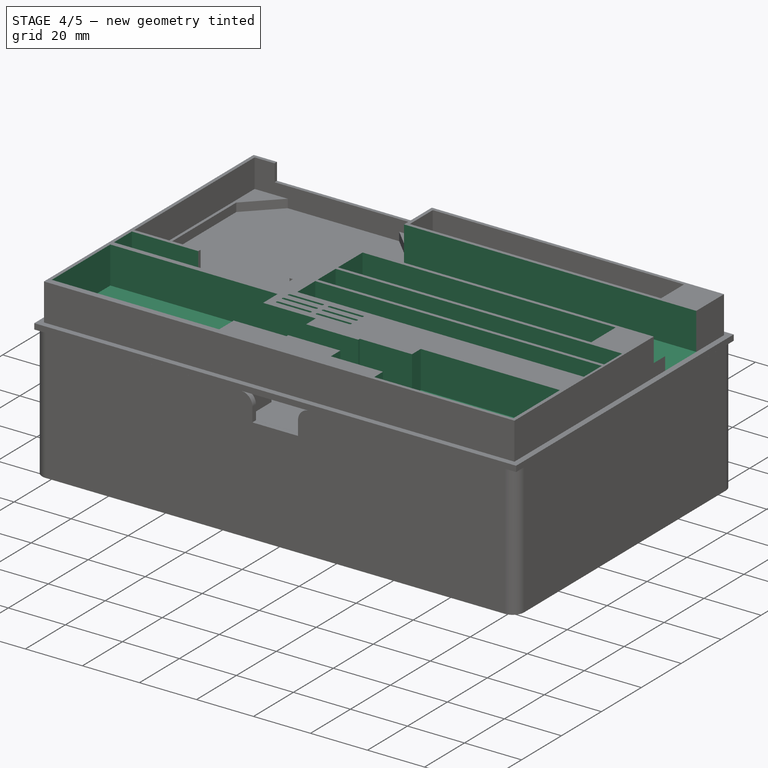
[diagram: stage 4 of 5 — iso view after this stage's code; geometry added in this stage tinted green]
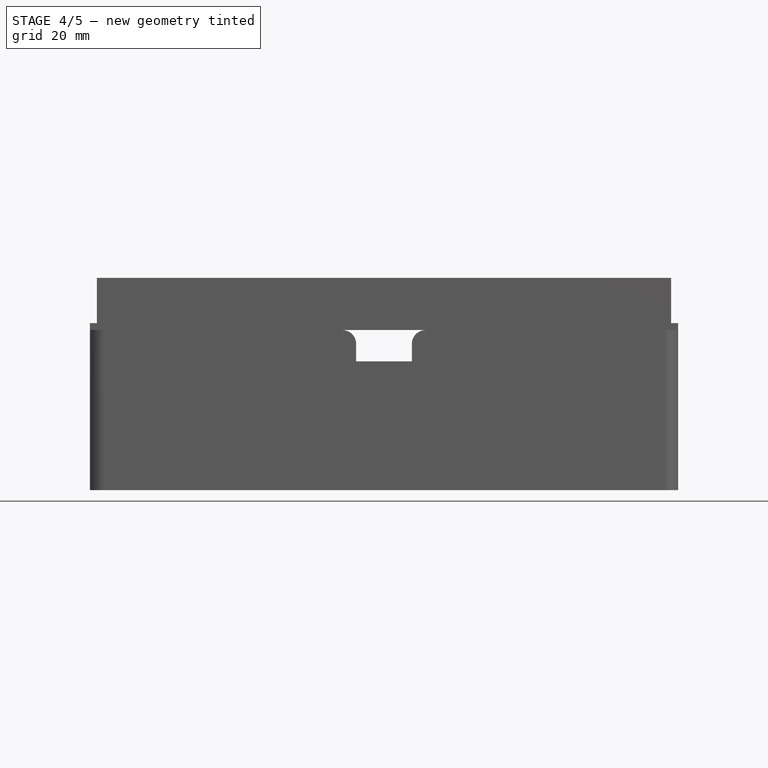
[diagram: stage 4 of 5 — front view after this stage's code; geometry added in this stage tinted green]
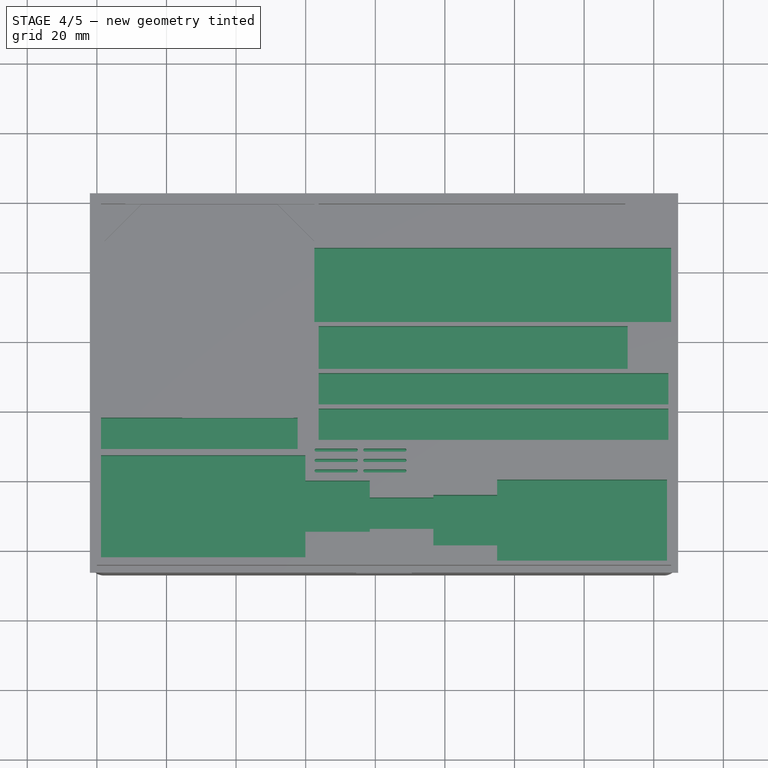
[diagram: stage 4 of 5 — top view after this stage's code; geometry added in this stage tinted green]
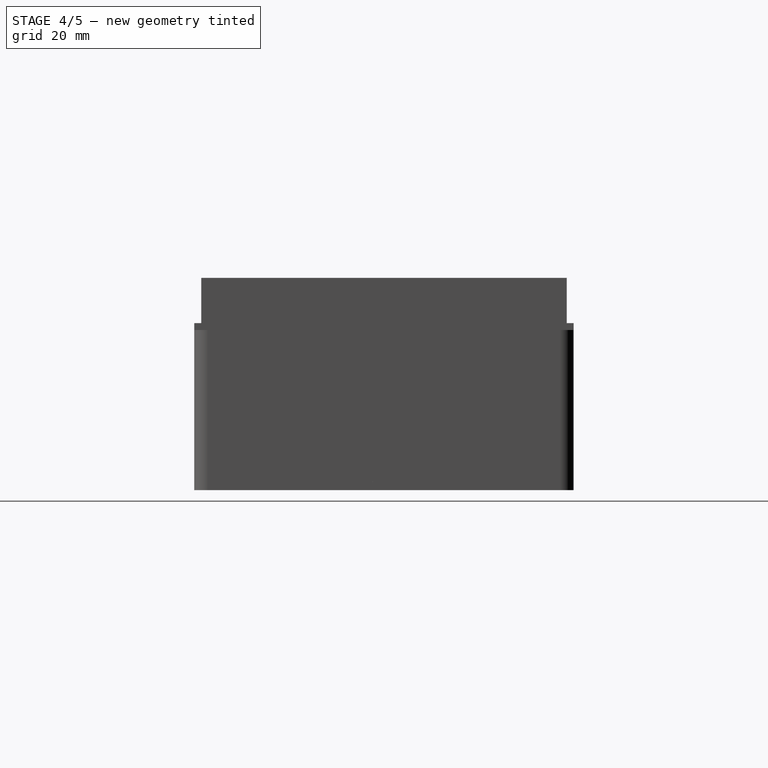
[diagram: stage 4 of 5 — right view after this stage's code; geometry added in this stage tinted green]
FEATURE [PartDesign::Pocket] Pocket007  label="HubPocketBot"
  BaseFeature = -> Pocket001
  Direction = (0,0,-1)
  Length = 5
  Length2 = 5
  Offset = -2
  Profile = -> Sketch008
  ReferenceAxis = -> Sketch008 [N_Axis]
  Type = 2
FEATURE [PartDesign::Pocket] Pocket002  label="HubPocket"
  BaseFeature = -> Pocket007
  Direction = (0,0,-1)
  Length = 0
  Length2 = 5
  Offset = -4.6
  Profile = -> Sketch003
  ReferenceAxis = -> Sketch003 [N_Axis]
  Type = 2
FEATURE [PartDesign::Pocket] Pocket003  label="WLanPocket"
  BaseFeature = -> Pocket002
  Direction = (0,0,-1)
  Length = 5
  Length2 = 5
  Offset = -2
  Profile = -> Sketch004
  ReferenceAxis = -> Sketch004 [N_Axis]
  Type = 2
FEATURE [PartDesign::Pocket] Pocket004  label="SSDPocket1"
  BaseFeature = -> Pocket003
  Direction = (0,0,-1)
  Length = 5
  Length2 = 5
  Offset = -2
  Profile = -> Sketch005
  ReferenceAxis = -> Sketch005 [N_Axis]
  Type = 2
FEATURE [PartDesign::Pocket] Pocket005  label="SSDPocket2"
  BaseFeature = -> Pocket004
  Direction = (0,0,-1)
  Length = 5
  Length2 = 5
  Offset = -2
  Profile = -> Sketch006
  ReferenceAxis = -> Sketch006 [N_Axis]
  Type = 2
FEATURE [PartDesign::Pocket] Pocket008  label="50WPSUPocket"
  BaseFeature = -> Pocket005
  Direction = (0,0,-1)
  Length = 5
  Length2 = 5
  Offset = -2
  Profile = -> Sketch009
  ReferenceAxis = -> Sketch009 [N_Axis]
  Type = 2
FEATURE [PartDesign::Pocket] Pocket009  label="30WPSUPocket"
  BaseFeature = -> Pocket008
  Direction = (0,0,-1)
  Length = 5
  Length2 = 5
  Offset = -2
  Profile = -> Sketch010
  ReferenceAxis = -> Sketch010 [N_Axis]
  Type = 2
FEATURE [PartDesign::Pocket] Pocket010  label="CRPocket"
  BaseFeature = -> Pocket009
  Direction = (0,0,-1)
  Length = 5
  Length2 = 5
  Offset = -2
  Profile = -> Sketch011
  ReferenceAxis = -> Sketch011 [N_Axis]
  Type = 2
FEATURE [PartDesign::Pocket] Pocket011  label="uSDPocket"
  BaseFeature = -> Pocket010
  Direction = (0,0,-1)
  Length = 5
  Length2 = 5
  Offset = -2
  Profile = -> Sketch012
  ReferenceAxis = -> Sketch012 [N_Axis]
  Type = 2
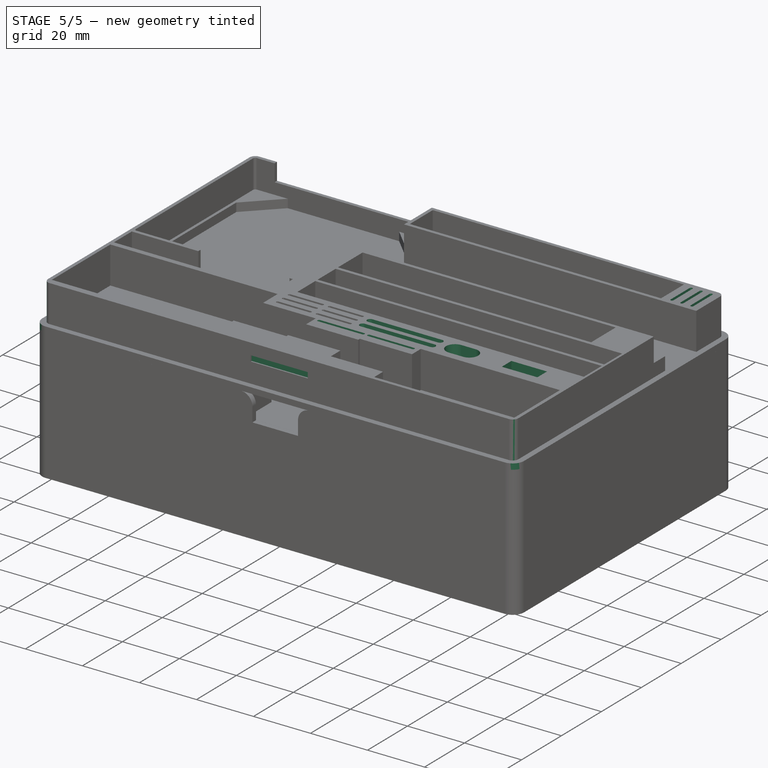
[diagram: stage 5 of 5 — iso view after this stage's code; geometry added in this stage tinted green]
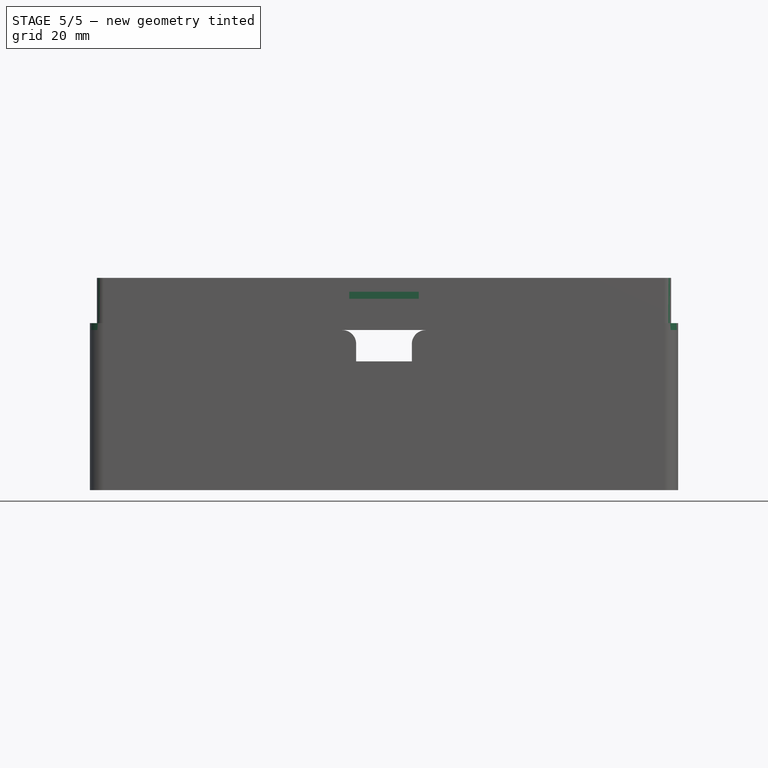
[diagram: stage 5 of 5 — front view after this stage's code; geometry added in this stage tinted green]
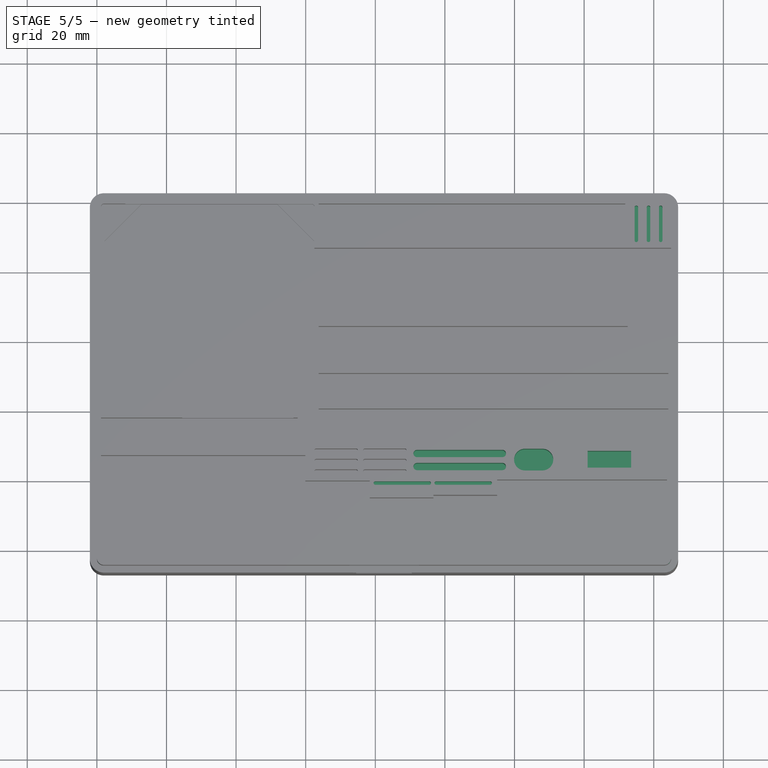
[diagram: stage 5 of 5 — top view after this stage's code; geometry added in this stage tinted green]
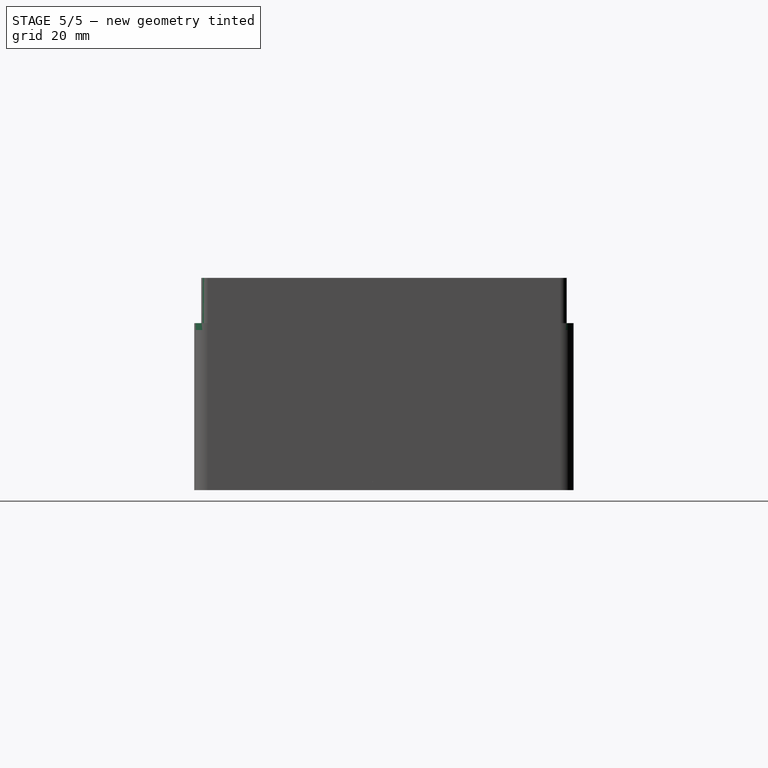
[diagram: stage 5 of 5 — right view after this stage's code; geometry added in this stage tinted green]
FEATURE [PartDesign::Pocket] Pocket012  label="SDPocket"
  BaseFeature = -> Pocket011
  Direction = (0,0,-1)
  Length = 0
  Length2 = 5
  Offset = -2
  Profile = -> Sketch013
  ReferenceAxis = -> Sketch013 [N_Axis]
  Type = 2
FEATURE [PartDesign::Pocket] Pocket015  label="OTGAdapterPocket"
  BaseFeature = -> Pocket012
  Direction = (0,0,-1)
  Length = 5
  Length2 = 5
  Offset = -2
  Profile = -> Sketch016
  ReferenceAxis = -> Sketch016 [N_Axis]
  Type = 2
FEATURE [PartDesign::Pocket] Pocket013  label="SIMPocket"
  BaseFeature = -> Pocket015
  Direction = (0,0,-1)
  Length = 5
  Length2 = 5
  Offset = -5
  Profile = -> Sketch014
  ReferenceAxis = -> Sketch014 [N_Axis]
  Type = 2
FEATURE [PartDesign::Pocket] Pocket014  label="nSIMPocket"
  BaseFeature = -> Pocket013
  Direction = (0,0,-1)
  Length = 5
  Length2 = 5
  Offset = -5
  Profile = -> Sketch015
  ReferenceAxis = -> Sketch015 [N_Axis]
  Type = 2
FEATURE [Sketcher::SketchObject] Sketch019  label="Side1ClipSketch"
  FullyConstrained = true
  MapMode = 5
  Placement = pos=(0,0,0) rot=(1,0,0;1.5708rad)
  Support = -> [XZ_Plane]
  sketch-geometry (5):
    g0: LineSegment StartX=92.5 StartY=11 StartZ=0 EndX=92.5 EndY=9 EndZ=0
    g1: LineSegment StartX=92.5 StartY=9 StartZ=0 EndX=72.5 EndY=9 EndZ=0
    g2: LineSegment StartX=72.5 StartY=9 StartZ=0 EndX=72.5 EndY=11 EndZ=0
    g3: LineSegment StartX=72.5 StartY=11 StartZ=0 EndX=92.5 EndY=11 EndZ=0
    g4: GeomPoint X=82.5 Y=10 Z=0
  constraints (13):
    c: Coincident(g0,g1)
    c: Coincident(g1,g2)
    c: Coincident(g2,g3)
    c: Coincident(g3,g0)
    c: Horizontal(g1)
    c: Horizontal(g3)
    c: Vertical(g0)
    c: Vertical(g2)
    c: Symmetric(g1,g0,g4)
    c: DistanceX(g-2,g4) = 82.5
    c: DistanceY(g-1,g4) = 10
    c: Distance(g3) = 20
    c: Distance(g2) = 2
FEATURE [PartDesign::Pocket] Pocket017  label="Side1Pocket"
  BaseFeature = -> Pocket014
  Direction = (0,1,2e-16)
  Length = 0.5
  Length2 = 5
  Offset = -0.6
  Profile = -> Sketch019
  ReferenceAxis = -> Sketch019 [N_Axis]
  Reversed = true
  Type = 0
FEATURE [PartDesign::Plane] DatumPlane001  label="Side2Plane"
  AttachmentOffset = pos=(0,0,105) rot=(0,0,1;0rad)
  Length = 211.596
  MapMode = 5
  Placement = pos=(0,-105,-2.33e-14) rot=(1,0,0;1.5708rad)
  ResizeMode = 0
  Support = -> [XZ_Plane]
  Width = 69.5959
FEATURE [Sketcher::SketchObject] Sketch020  label="Slide2ClipSketch"
  FullyConstrained = true
  MapMode = 5
  Placement = pos=(0,-105,-2.33e-14) rot=(1,0,0;1.5708rad)
  Support = -> [DatumPlane001]
  sketch-geometry (5):
    g0: LineSegment StartX=72.5 StartY=11 StartZ=0 EndX=72.5 EndY=9 EndZ=0
    g1: LineSegment StartX=72.5 StartY=9 StartZ=0 EndX=92.5 EndY=9 EndZ=0
    g2: LineSegment StartX=92.5 StartY=9 StartZ=0 EndX=92.5 EndY=11 EndZ=0
    g3: LineSegment StartX=92.5 StartY=11 StartZ=0 EndX=72.5 EndY=11 EndZ=0
    g4: GeomPoint X=82.5 Y=10 Z=0
  constraints (13):
    c: Coincident(g0,g1)
    c: Coincident(g1,g2)
    c: Coincident(g2,g3)
    c: Coincident(g3,g0)
    c: Horizontal(g1)
    c: Horizontal(g3)
    c: Vertical(g0)
    c: Vertical(g2)
    c: Symmetric(g1,g0,g4)
    c: Distance(g3) = 20
    c: Distance(g0) = 2
    c: DistanceX(g-2,g4) = 82.5
    c: DistanceY(g-1,g4) = 10
FEATURE [PartDesign::Pocket] Pocket018  label="Side2Pocket"
  BaseFeature = -> Pocket017
  Direction = (0,1,2e-16)
  Length = 0.5
  Length2 = 5
  Profile = -> Sketch020
  ReferenceAxis = -> Sketch020 [N_Axis]
  Type = 0
FEATURE [PartDesign::Fillet] Fillet
  Base = -> Pocket018 [Edge454,Edge448,Edge478,Edge472]
  BaseFeature = -> Pocket018
  Radius = 0.8
  SupportTransform = false
  UseAllEdges = false
FEATURE [PartDesign::Fillet] Fillet001
  Base = -> Fillet [Edge115,Edge127,Edge131,Edge116]
  BaseFeature = -> Fillet
  Radius = 2
  SupportTransform = false
  UseAllEdges = false
FEATURE [PartDesign::Fillet] Fillet002
  Base = -> Fillet001 [Edge437,Edge434,Edge435,Edge439]
  BaseFeature = -> Fillet001
  Radius = 4
  SupportTransform = false
  UseAllEdges = false
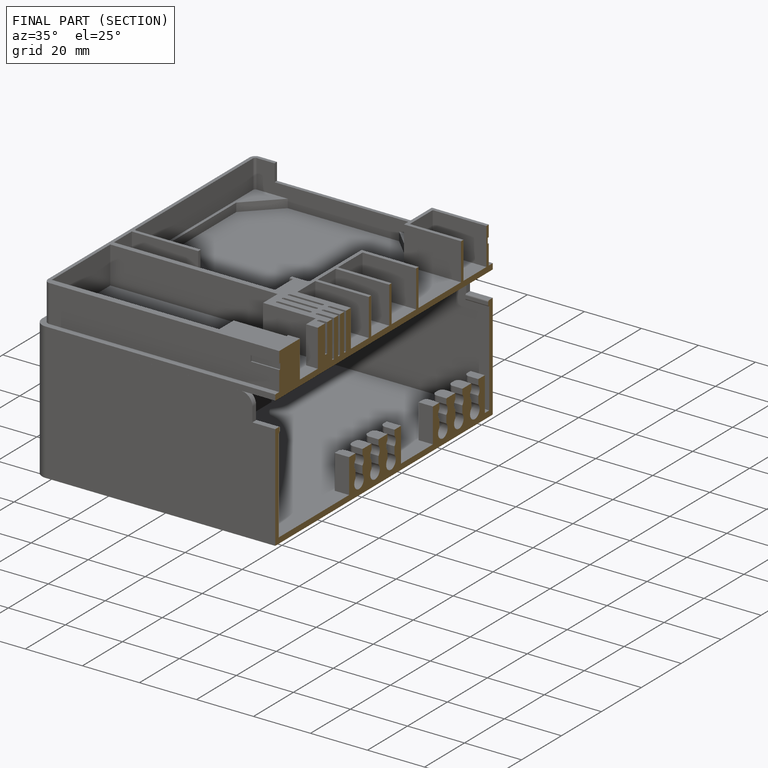
[diagram: finished part — half-section view (interior)]
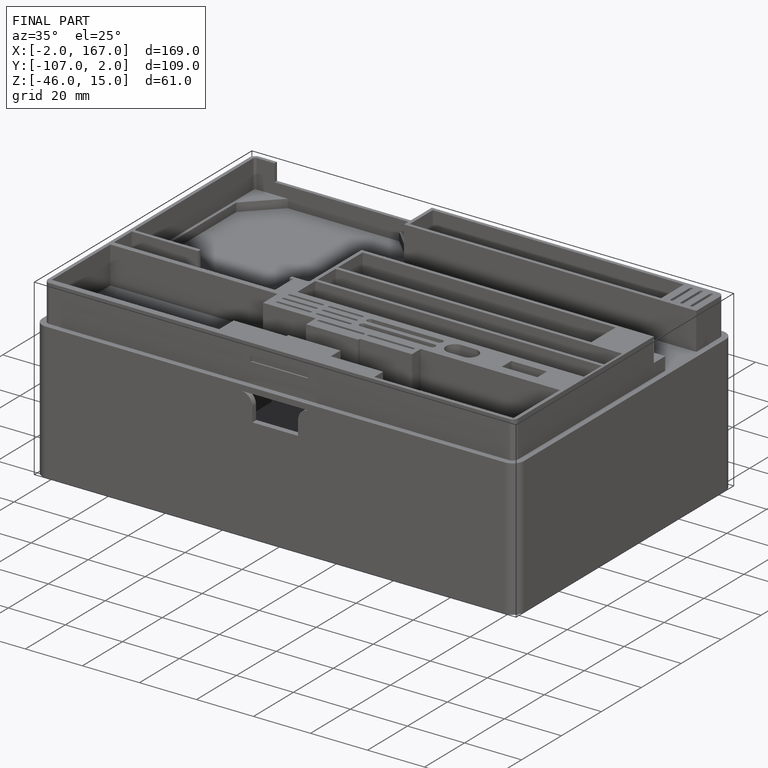
[diagram: finished part — iso view with bounding-box wireframe]
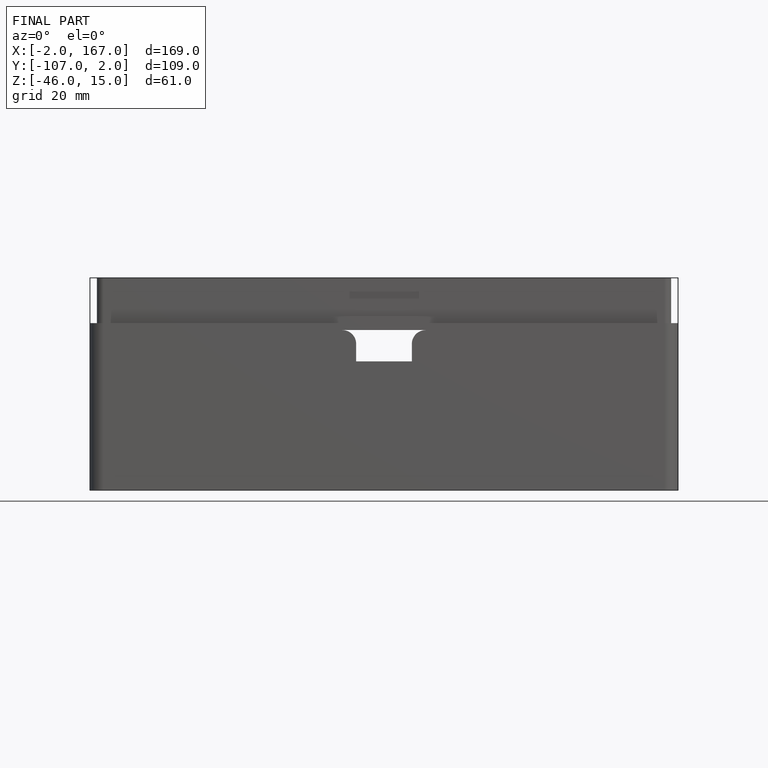
[diagram: finished part — front view with bounding-box wireframe]
